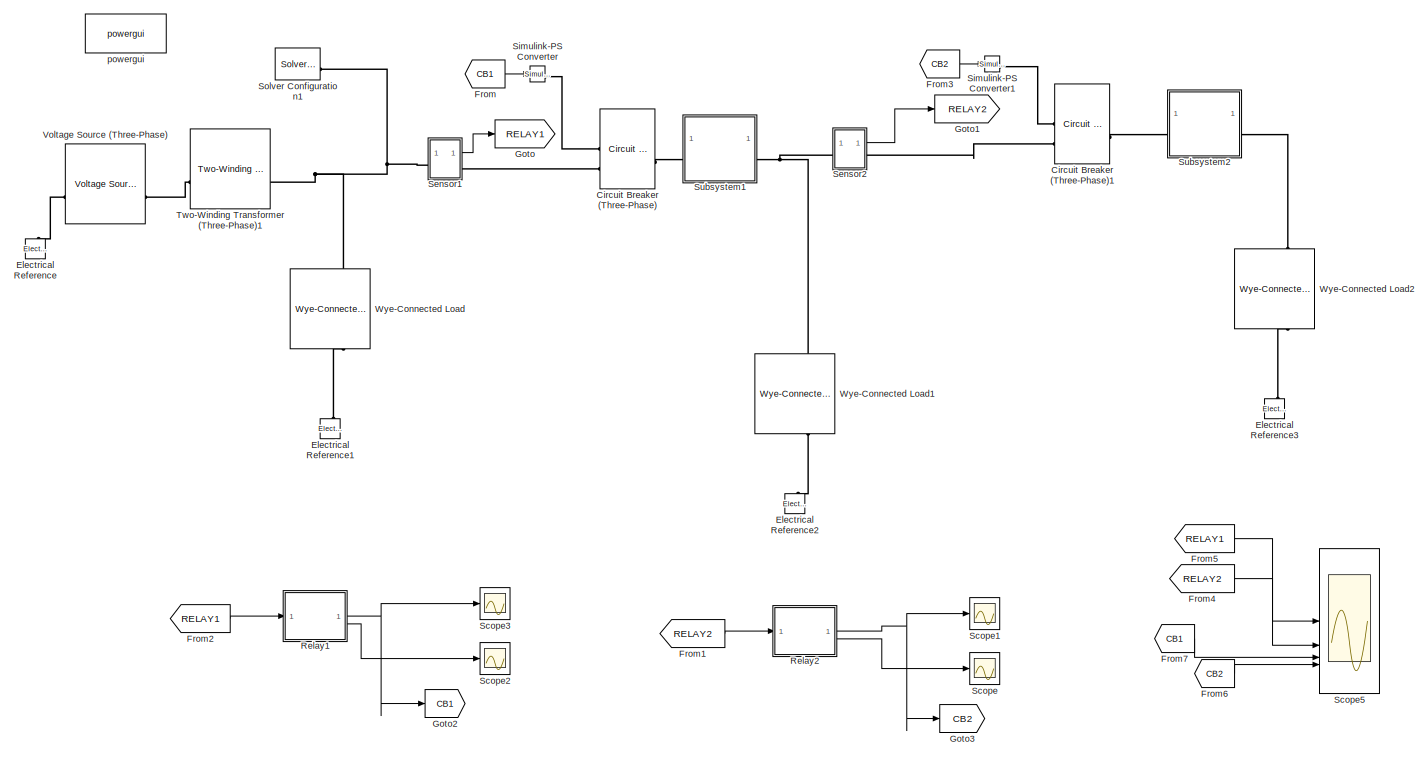
[diagram: root canvas - part 1/3, center side, full height]
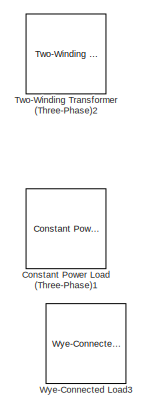
[diagram: root canvas - part 2/3, middle left region]
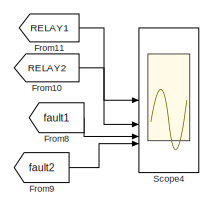
[diagram: root canvas - part 3/3, bottom right region]
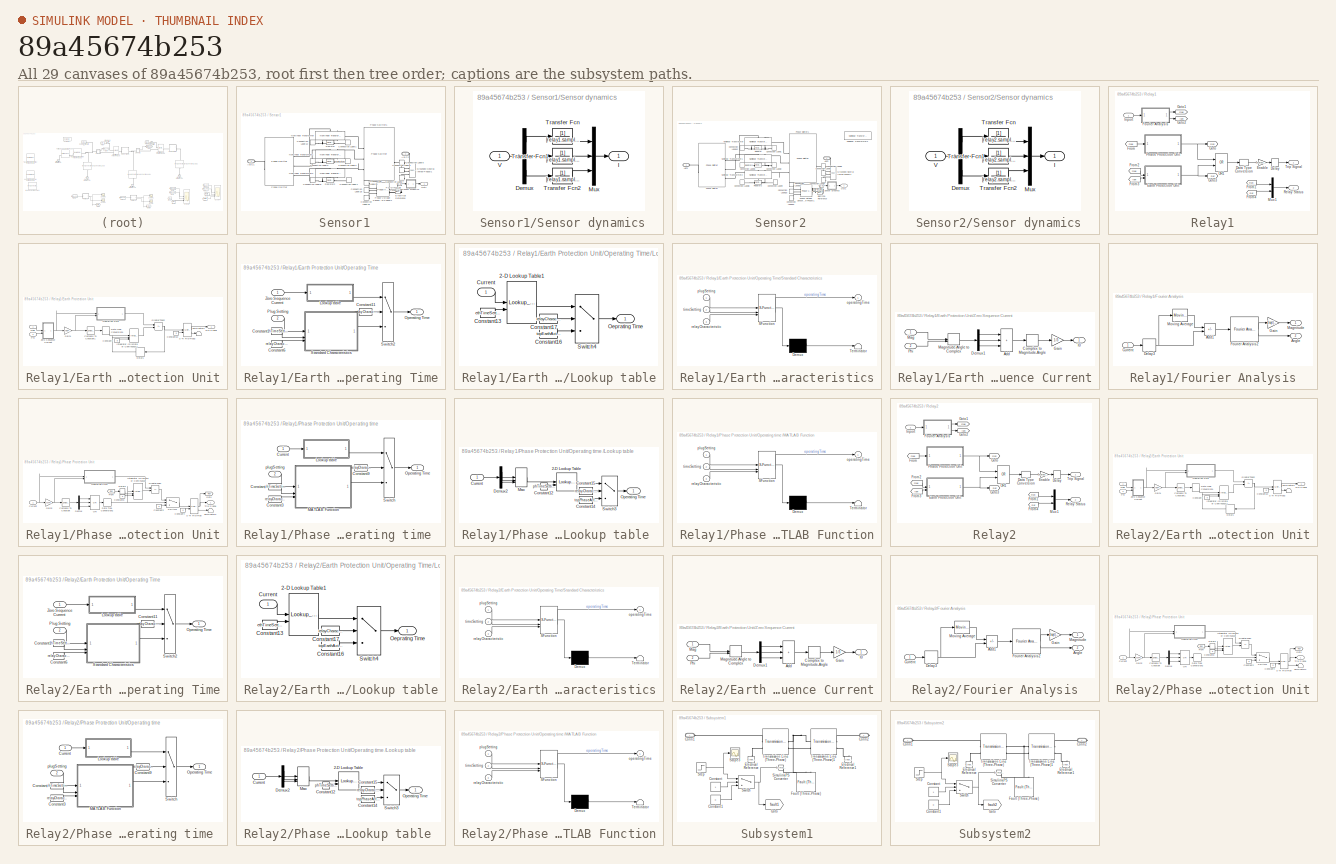
[diagram: thumbnail index - all 29 canvases of the model, root first then tree order]
MODEL slx_89a45674b253
KIND model
CONFIG AbsTol = auto
CONFIG EnableMultiTasking = off
CONFIG FixedStep = auto
CONFIG MaxStep = auto
CONFIG MinStep = auto
CONFIG RelTol = 1e-3
CONFIG SampleTimeConstraint = Unconstrained
CONFIG SolverName = VariableStepAuto
CONFIG StartTime = 0.0
CONFIG StopTime = 1
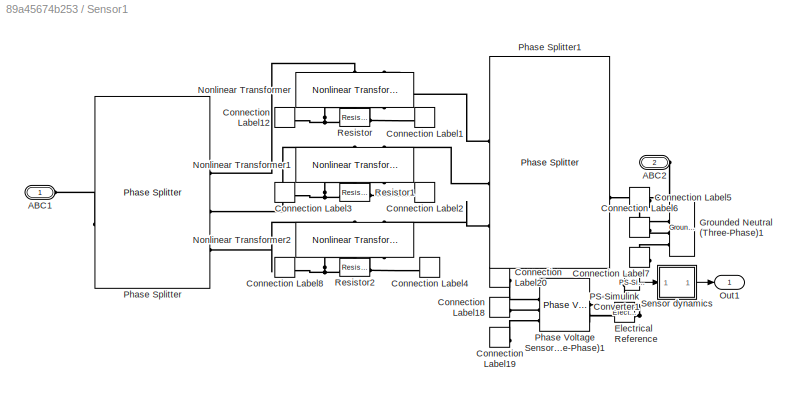
BLOCK [SubSystem]  Sensor1
BLOCK [PMIOPort]  Sensor1/ABC1
  NameLocation = top
  Side = Left
BLOCK [PMIOPort]  Sensor1/ABC2
  NameLocation = top
  Port = 2
  Side = Right
BLOCK [ConnectionLabel]  Sensor1/Connection Label1
  Label = Ian
BLOCK [ConnectionLabel]  Sensor1/Connection Label12
  Label = Iap
  NameLocation = top
BLOCK [ConnectionLabel]  Sensor1/Connection Label18
  Label = Ibp
  NameLocation = top
BLOCK [ConnectionLabel]  Sensor1/Connection Label19
  Label = Icp
  NameLocation = top
BLOCK [ConnectionLabel]  Sensor1/Connection Label2
  Label = Ibn
BLOCK [ConnectionLabel]  Sensor1/Connection Label20
  Label = Iap
  NameLocation = top
BLOCK [ConnectionLabel]  Sensor1/Connection Label3
  Label = Ibp
  NameLocation = top
BLOCK [ConnectionLabel]  Sensor1/Connection Label4
  Label = Ibn
BLOCK [ConnectionLabel]  Sensor1/Connection Label5
  Label = Ian
  NameLocation = top
BLOCK [ConnectionLabel]  Sensor1/Connection Label6
  Label = Ibn
  NameLocation = top
BLOCK [ConnectionLabel]  Sensor1/Connection Label7
  Label = Icn
  NameLocation = top
BLOCK [ConnectionLabel]  Sensor1/Connection Label8
  Label = Icp
  NameLocation = top
BLOCK [Reference]  Sensor1/Electrical Reference  REF=fl_lib/Electrical/Electrical Elements/Electrical Reference
  NameLocation = top
  SourceBlock = fl_lib/Electrical/Electrical Elements/Electrical Reference
  SourceType = Electrical Reference
BLOCK [Reference]  Sensor1/Grounded Neutral (Three-Phase)1  REF=ee_lib/Connectors &
References/Grounded Neutral
(Three-Phase)
  NameLocation = top
  SourceBlock = ee_lib/Connectors &\nReferences/Grounded Neutral\n(Three-Phase)
  SourceType = Grounded Neutral\n(Three-Phase)
BLOCK [Reference]  Sensor1/Nonlinear Transformer  REF=ee_lib/Passive/Transformers/Nonlinear
Transformer
  NameLocation = left
  SourceBlock = ee_lib/Passive/Transformers/Nonlinear\nTransformer
  SourceType = Nonlinear\nTransformer
BLOCK [Reference]  Sensor1/Nonlinear Transformer1  REF=ee_lib/Passive/Transformers/Nonlinear
Transformer
  NameLocation = left
  SourceBlock = ee_lib/Passive/Transformers/Nonlinear\nTransformer
  SourceType = Nonlinear\nTransformer
BLOCK [Reference]  Sensor1/Nonlinear Transformer2  REF=ee_lib/Passive/Transformers/Nonlinear
Transformer
  NameLocation = left
  SourceBlock = ee_lib/Passive/Transformers/Nonlinear\nTransformer
  SourceType = Nonlinear\nTransformer
BLOCK [Outport]  Sensor1/Out1
BLOCK [Reference]  Sensor1/PS-Simulink Converter1  REF=nesl_utility/PS-Simulink
Converter
  SourceBlock = nesl_utility/PS-Simulink\nConverter
  SourceType = PS-Simulink\nConverter
BLOCK [Reference]  Sensor1/Phase Splitter  REF=ee_lib/Connectors &
References/Phase Splitter
  SourceBlock = ee_lib/Connectors &\nReferences/Phase Splitter
  SourceType = Phase Splitter
BLOCK [Reference]  Sensor1/Phase Splitter1  REF=ee_lib/Connectors &
References/Phase Splitter
  SourceBlock = ee_lib/Connectors &\nReferences/Phase Splitter
  SourceType = Phase Splitter
BLOCK [Reference]  Sensor1/Phase Voltage Sensor (Three-Phase)1  REF=ee_lib/Sensors &
Transducers/Phase Voltage Sensor
(Three-Phase)
  NameLocation = right
  SourceBlock = ee_lib/Sensors &\nTransducers/Phase Voltage Sensor\n(Three-Phase)
  SourceType = Phase Voltage Sensor\n(Three-Phase)
BLOCK [Reference]  Sensor1/Resistor  REF=fl_lib/Electrical/Electrical Elements/Resistor
  SourceBlock = fl_lib/Electrical/Electrical Elements/Resistor
  SourceType = Resistor
BLOCK [Reference]  Sensor1/Resistor1  REF=fl_lib/Electrical/Electrical Elements/Resistor
  SourceBlock = fl_lib/Electrical/Electrical Elements/Resistor
  SourceType = Resistor
BLOCK [Reference]  Sensor1/Resistor2  REF=fl_lib/Electrical/Electrical Elements/Resistor
  SourceBlock = fl_lib/Electrical/Electrical Elements/Resistor
  SourceType = Resistor
BLOCK [SubSystem]  Sensor1/Sensor dynamics
BLOCK [Demux]  Sensor1/Sensor dynamics/Demux
  Outputs = 3
BLOCK [Outport]  Sensor1/Sensor dynamics/I
BLOCK [Mux]  Sensor1/Sensor dynamics/Mux
  DisplayOption = bar
  Inputs = 3
BLOCK [TransferFcn]  Sensor1/Sensor dynamics/Transfer Fcn
  Denominator = [relay1.sampleTime 1]
BLOCK [TransferFcn]  Sensor1/Sensor dynamics/Transfer Fcn1
  Denominator = [relay1.sampleTime 1]
BLOCK [TransferFcn]  Sensor1/Sensor dynamics/Transfer Fcn2
  Denominator = [relay1.sampleTime 1]
BLOCK [Inport]  Sensor1/Sensor dynamics/V
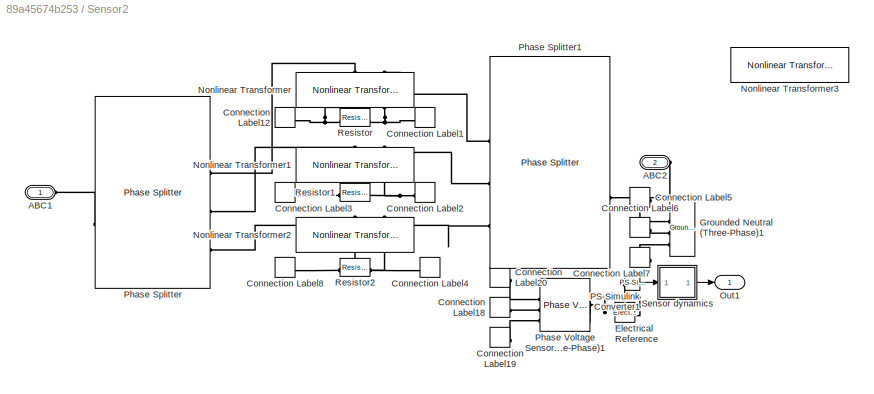
BLOCK [SubSystem]  Sensor2
BLOCK [PMIOPort]  Sensor2/ABC1
  NameLocation = top
  Side = Left
BLOCK [PMIOPort]  Sensor2/ABC2
  NameLocation = top
  Port = 2
  Side = Right
BLOCK [ConnectionLabel]  Sensor2/Connection Label1
  Label = Ian
BLOCK [ConnectionLabel]  Sensor2/Connection Label12
  Label = Iap
  NameLocation = top
BLOCK [ConnectionLabel]  Sensor2/Connection Label18
  Label = Ibp
  NameLocation = top
BLOCK [ConnectionLabel]  Sensor2/Connection Label19
  Label = Icp
  NameLocation = top
BLOCK [ConnectionLabel]  Sensor2/Connection Label2
  Label = Ibn
BLOCK [ConnectionLabel]  Sensor2/Connection Label20
  Label = Iap
  NameLocation = top
BLOCK [ConnectionLabel]  Sensor2/Connection Label3
  Label = Ibp
  NameLocation = top
BLOCK [ConnectionLabel]  Sensor2/Connection Label4
  Label = Ibn
BLOCK [ConnectionLabel]  Sensor2/Connection Label5
  Label = Ian
  NameLocation = top
BLOCK [ConnectionLabel]  Sensor2/Connection Label6
  Label = Ibn
  NameLocation = top
BLOCK [ConnectionLabel]  Sensor2/Connection Label7
  Label = Icn
  NameLocation = top
BLOCK [ConnectionLabel]  Sensor2/Connection Label8
  Label = Icp
  NameLocation = top
BLOCK [Reference]  Sensor2/Electrical Reference  REF=fl_lib/Electrical/Electrical Elements/Electrical Reference
  NameLocation = top
  SourceBlock = fl_lib/Electrical/Electrical Elements/Electrical Reference
  SourceType = Electrical Reference
BLOCK [Reference]  Sensor2/Grounded Neutral (Three-Phase)1  REF=ee_lib/Connectors &
References/Grounded Neutral
(Three-Phase)
  NameLocation = top
  SourceBlock = ee_lib/Connectors &\nReferences/Grounded Neutral\n(Three-Phase)
  SourceType = Grounded Neutral\n(Three-Phase)
BLOCK [Reference]  Sensor2/Nonlinear Transformer  REF=ee_lib/Passive/Transformers/Nonlinear
Transformer
  NameLocation = left
  SourceBlock = ee_lib/Passive/Transformers/Nonlinear\nTransformer
  SourceType = Nonlinear\nTransformer
BLOCK [Reference]  Sensor2/Nonlinear Transformer1  REF=ee_lib/Passive/Transformers/Nonlinear
Transformer
  NameLocation = left
  SourceBlock = ee_lib/Passive/Transformers/Nonlinear\nTransformer
  SourceType = Nonlinear\nTransformer
BLOCK [Reference]  Sensor2/Nonlinear Transformer2  REF=ee_lib/Passive/Transformers/Nonlinear
Transformer
  NameLocation = left
  SourceBlock = ee_lib/Passive/Transformers/Nonlinear\nTransformer
  SourceType = Nonlinear\nTransformer
BLOCK [Reference]  Sensor2/Nonlinear Transformer3  REF=ee_lib/Passive/Transformers/Nonlinear
Transformer
  NameLocation = left
  SourceBlock = ee_lib/Passive/Transformers/Nonlinear\nTransformer
  SourceType = Nonlinear\nTransformer
BLOCK [Outport]  Sensor2/Out1
BLOCK [Reference]  Sensor2/PS-Simulink Converter1  REF=nesl_utility/PS-Simulink
Converter
  SourceBlock = nesl_utility/PS-Simulink\nConverter
  SourceType = PS-Simulink\nConverter
BLOCK [Reference]  Sensor2/Phase Splitter  REF=ee_lib/Connectors &
References/Phase Splitter
  SourceBlock = ee_lib/Connectors &\nReferences/Phase Splitter
  SourceType = Phase Splitter
BLOCK [Reference]  Sensor2/Phase Splitter1  REF=ee_lib/Connectors &
References/Phase Splitter
  SourceBlock = ee_lib/Connectors &\nReferences/Phase Splitter
  SourceType = Phase Splitter
BLOCK [Reference]  Sensor2/Phase Voltage Sensor (Three-Phase)1  REF=ee_lib/Sensors &
Transducers/Phase Voltage Sensor
(Three-Phase)
  NameLocation = right
  SourceBlock = ee_lib/Sensors &\nTransducers/Phase Voltage Sensor\n(Three-Phase)
  SourceType = Phase Voltage Sensor\n(Three-Phase)
BLOCK [Reference]  Sensor2/Resistor  REF=fl_lib/Electrical/Electrical Elements/Resistor
  SourceBlock = fl_lib/Electrical/Electrical Elements/Resistor
  SourceType = Resistor
BLOCK [Reference]  Sensor2/Resistor1  REF=fl_lib/Electrical/Electrical Elements/Resistor
  SourceBlock = fl_lib/Electrical/Electrical Elements/Resistor
  SourceType = Resistor
BLOCK [Reference]  Sensor2/Resistor2  REF=fl_lib/Electrical/Electrical Elements/Resistor
  SourceBlock = fl_lib/Electrical/Electrical Elements/Resistor
  SourceType = Resistor
BLOCK [SubSystem]  Sensor2/Sensor dynamics
BLOCK [Demux]  Sensor2/Sensor dynamics/Demux
  Outputs = 3
BLOCK [Outport]  Sensor2/Sensor dynamics/I
BLOCK [Mux]  Sensor2/Sensor dynamics/Mux
  DisplayOption = bar
  Inputs = 3
BLOCK [TransferFcn]  Sensor2/Sensor dynamics/Transfer Fcn
  Denominator = [relay2.sampleTime 1]
BLOCK [TransferFcn]  Sensor2/Sensor dynamics/Transfer Fcn1
  Denominator = [relay2.sampleTime 1]
BLOCK [TransferFcn]  Sensor2/Sensor dynamics/Transfer Fcn2
  Denominator = [relay2.sampleTime 1]
BLOCK [Inport]  Sensor2/Sensor dynamics/V
BLOCK [Reference] Circuit Breaker (Three-Phase)  REF=ee_lib/Switches & Breakers/Circuit Breaker
(Three-Phase)
  SourceBlock = ee_lib/Switches & Breakers/Circuit Breaker\n(Three-Phase)
  SourceType = Circuit Breaker\n(Three-Phase)
BLOCK [Reference] Circuit Breaker (Three-Phase)1  REF=ee_lib/Switches & Breakers/Circuit Breaker
(Three-Phase)
  SourceBlock = ee_lib/Switches & Breakers/Circuit Breaker\n(Three-Phase)
  SourceType = Circuit Breaker\n(Three-Phase)
BLOCK [Reference] Constant Power Load (Three-Phase)1  REF=ee_lib/Passive/Constant Power Load
(Three-Phase)
  SourceBlock = ee_lib/Passive/Constant Power Load\n(Three-Phase)
  SourceType = Constant Power Load\n(Three-Phase)
BLOCK [Reference] Electrical Reference  REF=fl_lib/Electrical/Electrical Elements/Electrical Reference
  NameLocation = right
  SourceBlock = fl_lib/Electrical/Electrical Elements/Electrical Reference
  SourceType = Electrical Reference
BLOCK [Reference] Electrical Reference1  REF=fl_lib/Electrical/Electrical Elements/Electrical Reference
  NameLocation = right
  SourceBlock = fl_lib/Electrical/Electrical Elements/Electrical Reference
  SourceType = Electrical Reference
BLOCK [Reference] Electrical Reference2  REF=fl_lib/Electrical/Electrical Elements/Electrical Reference
  NameLocation = right
  SourceBlock = fl_lib/Electrical/Electrical Elements/Electrical Reference
  SourceType = Electrical Reference
BLOCK [Reference] Electrical Reference3  REF=fl_lib/Electrical/Electrical Elements/Electrical Reference
  NameLocation = right
  SourceBlock = fl_lib/Electrical/Electrical Elements/Electrical Reference
  SourceType = Electrical Reference
BLOCK [From] From
  GotoTag = CB1
BLOCK [From] From1
  GotoTag = RELAY2
BLOCK [From] From10
  GotoTag = RELAY2
BLOCK [From] From11
  GotoTag = RELAY1
BLOCK [From] From2
  GotoTag = RELAY1
BLOCK [From] From3
  GotoTag = CB2
BLOCK [From] From4
  GotoTag = RELAY2
BLOCK [From] From5
  GotoTag = RELAY1
BLOCK [From] From6
  GotoTag = CB2
BLOCK [From] From7
  GotoTag = CB1
BLOCK [From] From8
  GotoTag = fault1
  TagVisibility = global
BLOCK [From] From9
  GotoTag = fault2
  TagVisibility = global
BLOCK [Goto] Goto
  GotoTag = RELAY1
BLOCK [Goto] Goto1
  GotoTag = RELAY2
BLOCK [Goto] Goto2
  GotoTag = CB1
BLOCK [Goto] Goto3
  GotoTag = CB2
BLOCK [SubSystem] Relay1
  SystemSampleTime = relay1.sampleTime
  TreatAsAtomicUnit = on
BLOCK [DataTypeConversion] Relay1/Data Type Conversion
  OutDataTypeStr = double
  RndMeth = Floor
  SaturateOnIntegerOverflow = off
BLOCK [Delay] Relay1/Delay
  DelayLength = 1
  InputPortMap = u0
BLOCK [SubSystem] Relay1/Earth Protection Unit
BLOCK [Reference] Relay1/Earth Protection Unit/Compare To Constant1  REF=simulink/Logic and Bit
Operations/Compare
To Constant
  SourceBlock = simulink/Logic and Bit\nOperations/Compare\nTo Constant
  SourceType = Compare To Constant
BLOCK [Constant] Relay1/Earth Protection Unit/Constant10
  OutDataTypeStr = boolean
  Value = 0
BLOCK [Constant] Relay1/Earth Protection Unit/Constant7
  OutDataTypeStr = double
  Value = 0
BLOCK [DataTypeConversion] Relay1/Earth Protection Unit/Data Type Conversion1
  NameLocation = right
  OutDataTypeStr = double
  RndMeth = Floor
  SaturateOnIntegerOverflow = off
BLOCK [Delay] Relay1/Earth Protection Unit/Delay1
  DelayLength = 1
  InputPortMap = u0
  NameLocation = top
BLOCK [Gain] Relay1/Earth Protection Unit/Gain1
  Gain = 1/(ethPickUp)
BLOCK [RelationalOperator] Relay1/Earth Protection Unit/GreaterThan2
  InputSameDT = off
  Operator = <=
  OutDataTypeStr = boolean
  RndMeth = Simplest
BLOCK [Reference] Relay1/Earth Protection Unit/Integrator (Discrete or Continuous)1  REF=eeGeneralControl/Integrator
(Discrete or Continuous)
  SourceBlock = eeGeneralControl/Integrator\n(Discrete or Continuous)
  SourceType = Integrator (Discrete or Continuous)
BLOCK [Inport] Relay1/Earth Protection Unit/Mag
BLOCK [SubSystem] Relay1/Earth Protection Unit/Operating Time
BLOCK [Constant] Relay1/Earth Protection Unit/Operating Time/Constant1
  Value = ethTimeSetting
BLOCK [Constant] Relay1/Earth Protection Unit/Operating Time/Constant11
  Value = relayCharacteristicEarth
BLOCK [Constant] Relay1/Earth Protection Unit/Operating Time/Constant6
  Value = relayCharacteristicEarth
BLOCK [SubSystem] Relay1/Earth Protection Unit/Operating Time/Lookup table
BLOCK [Lookup_n-D] Relay1/Earth Protection Unit/Operating Time/Lookup table/2-D Lookup Table1
  BreakpointsForDimension1 = currentEarth
  BreakpointsForDimension2 = tmsEarth
  ExtrapMethod = Cubic spline
  InputPortMap = u0,u1
  InternalRulePriority = Speed
  InterpMethod = Cubic spline
  RndMeth = Simplest
  Table = topEarth
BLOCK [Constant] Relay1/Earth Protection Unit/Operating Time/Lookup table/Constant13
  Value = ethTimeSetting
BLOCK [Constant] Relay1/Earth Protection Unit/Operating Time/Lookup table/Constant16
  Value = topEarthActual
BLOCK [Constant] Relay1/Earth Protection Unit/Operating Time/Lookup table/Constant17
  Value = relayCharacteristicEarth
BLOCK [Inport] Relay1/Earth Protection Unit/Operating Time/Lookup table/Current
BLOCK [Outport] Relay1/Earth Protection Unit/Operating Time/Lookup table/Oeprating Time
BLOCK [Switch] Relay1/Earth Protection Unit/Operating Time/Lookup table/Switch4
  InputSameDT = off
  SaturateOnIntegerOverflow = off
  Threshold = 8
BLOCK [Outport] Relay1/Earth Protection Unit/Operating Time/Operating Time
BLOCK [Inport] Relay1/Earth Protection Unit/Operating Time/Plug Setting
  Port = 2
BLOCK [SubSystem] Relay1/Earth Protection Unit/Operating Time/Standard Characteristics
  ErrorFcn = Stateflow.Translate.translate
  PermitHierarchicalResolution = ExplicitOnly
  SFBlockType = MATLAB Function
  TreatAsAtomicUnit = on
BLOCK [Demux] Relay1/Earth Protection Unit/Operating Time/Standard Characteristics/ Demux 
  Outputs = 1
BLOCK [S-Function] Relay1/Earth Protection Unit/Operating Time/Standard Characteristics/ SFunction 
  EnableBusSupport = on
  FunctionName = sf_sfun
  PortCounts = [3 2]
  SFcnIsStateOwnerBlock = off
  SFunctionDeploymentMode = off
  Tag = Stateflow S-Function 3
BLOCK [Terminator] Relay1/Earth Protection Unit/Operating Time/Standard Characteristics/ Terminator 
BLOCK [Outport] Relay1/Earth Protection Unit/Operating Time/Standard Characteristics/operatingTime
BLOCK [Inport] Relay1/Earth Protection Unit/Operating Time/Standard Characteristics/plugSetting
BLOCK [Inport] Relay1/Earth Protection Unit/Operating Time/Standard Characteristics/relayCharacteristic
  Port = 3
BLOCK [Inport] Relay1/Earth Protection Unit/Operating Time/Standard Characteristics/timeSetting
  Port = 2
BLOCK [Switch] Relay1/Earth Protection Unit/Operating Time/Switch2
  InputSameDT = off
  SaturateOnIntegerOverflow = off
  Threshold = 7
BLOCK [Inport] Relay1/Earth Protection Unit/Operating Time/Zero Sequence Current
BLOCK [Inport] Relay1/Earth Protection Unit/Phi
  Port = 2
BLOCK [Reference] Relay1/Earth Protection Unit/S-R Flip-Flop2  REF=simulink_extras/Flip Flops/S-R
Flip-Flop
  SourceBlock = simulink_extras/Flip Flops/S-R\nFlip-Flop
  SourceType = SRFlipFlop
BLOCK [Terminator] Relay1/Earth Protection Unit/Terminator3
BLOCK [Outport] Relay1/Earth Protection Unit/Trip Signal
BLOCK [SubSystem] Relay1/Earth Protection Unit/Zero Sequence Current
BLOCK [Sum] Relay1/Earth Protection Unit/Zero Sequence Current/Add
  IconShape = rectangular
  Inputs = +++
BLOCK [ComplexToMagnitudeAngle] Relay1/Earth Protection Unit/Zero Sequence Current/Complex to Magnitude-Angle
  Output = Magnitude
BLOCK [Demux] Relay1/Earth Protection Unit/Zero Sequence Current/Demux1
  Outputs = 3
BLOCK [Gain] Relay1/Earth Protection Unit/Zero Sequence Current/Gain
  Gain = 1/3
BLOCK [Outport] Relay1/Earth Protection Unit/Zero Sequence Current/I0
BLOCK [Inport] Relay1/Earth Protection Unit/Zero Sequence Current/Mag
BLOCK [MagnitudeAngleToComplex] Relay1/Earth Protection Unit/Zero Sequence Current/Magnitude-Angle to Complex
BLOCK [Inport] Relay1/Earth Protection Unit/Zero Sequence Current/Phi
  Port = 2
BLOCK [Gain] Relay1/Enable
  Gain = protectionEnable
BLOCK [SubSystem] Relay1/Fourier Analysis
BLOCK [Sum] Relay1/Fourier Analysis/Add1
  IconShape = rectangular
  Inputs = -+
BLOCK [Outport] Relay1/Fourier Analysis/Angle
  Port = 2
BLOCK [Inport] Relay1/Fourier Analysis/Current
BLOCK [Delay] Relay1/Fourier Analysis/Delay3
  DelayLength = 1
  InputPortMap = u0
BLOCK [Reference] Relay1/Fourier Analysis/Fourier Analysis2  REF=eeGeneralControl/Fourier Analysis
  SourceBlock = eeGeneralControl/Fourier Analysis
  SourceType = Fourier Analysis
BLOCK [Gain] Relay1/Fourier Analysis/Gain
  Gain = 1/sqrt(2)
BLOCK [Outport] Relay1/Fourier Analysis/Magnitude
BLOCK [Reference] Relay1/Fourier Analysis/Moving Average  REF=eeGeneralControl/Moving Average
  SourceBlock = eeGeneralControl/Moving Average
  SourceType = Moving Average
BLOCK [From] Relay1/From
  GotoTag = mag
BLOCK [From] Relay1/From1
  GotoTag = Rph
BLOCK [From] Relay1/From2
  GotoTag = mag
BLOCK [From] Relay1/From3
  GotoTag = iphi
BLOCK [From] Relay1/From4
  GotoTag = Rer
BLOCK [Goto] Relay1/Goto
  GotoTag = Rph
BLOCK [Goto] Relay1/Goto1
  GotoTag = mag
BLOCK [Goto] Relay1/Goto2
  GotoTag = iphi
BLOCK [Goto] Relay1/Goto3
  GotoTag = Rer
BLOCK [Inport] Relay1/Inport
BLOCK [Mux] Relay1/Mux1
  DisplayOption = bar
  Inputs = 2
BLOCK [Logic] Relay1/OR1
  AllPortsSameDT = off
  IconShape = distinctive
  Operator = OR
  OutDataTypeStr = boolean
BLOCK [SubSystem] Relay1/Phase Protection Unit
BLOCK [Reference] Relay1/Phase Protection Unit/Compare To Constant  REF=simulink/Logic and Bit
Operations/Compare
To Constant
  SourceBlock = simulink/Logic and Bit\nOperations/Compare\nTo Constant
  SourceType = Compare To Constant
BLOCK [Constant] Relay1/Phase Protection Unit/Constant2
  OutDataTypeStr = boolean
  Value = 0
BLOCK [Constant] Relay1/Phase Protection Unit/Constant4
  OutDataTypeStr = boolean
  Value = 0
BLOCK [Constant] Relay1/Phase Protection Unit/Constant8
  OutDataTypeStr = double
  Value = 0
BLOCK [Inport] Relay1/Phase Protection Unit/Current
BLOCK [DataTypeConversion] Relay1/Phase Protection Unit/Data Type Conversion2
  NameLocation = right
  OutDataTypeStr = double
  RndMeth = Floor
  SaturateOnIntegerOverflow = off
BLOCK [Delay] Relay1/Phase Protection Unit/Delay2
  DelayLength = 1
  InputPortMap = u0
BLOCK [Demux] Relay1/Phase Protection Unit/Demux
  Outputs = 3
BLOCK [From] Relay1/Phase Protection Unit/From
  GotoTag = Rph
BLOCK [Gain] Relay1/Phase Protection Unit/Gain2
  Gain = 1/(phPickUp)
BLOCK [Goto] Relay1/Phase Protection Unit/Goto
  GotoTag = Rph
BLOCK [RelationalOperator] Relay1/Phase Protection Unit/GreaterThan
  InputSameDT = off
  Operator = <=
  OutDataTypeStr = boolean
  RndMeth = Simplest
BLOCK [Reference] Relay1/Phase Protection Unit/Integrator (Discrete or Continuous)  REF=eeGeneralControl/Integrator
(Discrete or Continuous)
  SourceBlock = eeGeneralControl/Integrator\n(Discrete or Continuous)
  SourceType = Integrator (Discrete or Continuous)
BLOCK [Logic] Relay1/Phase Protection Unit/OR
  AllPortsSameDT = off
  IconShape = distinctive
  Inputs = 3
  Operator = OR
  OutDataTypeStr = boolean
BLOCK [SubSystem] Relay1/Phase Protection Unit/Operating time 
BLOCK [Constant] Relay1/Phase Protection Unit/Operating time /Constant
  Value = phTimeSetting
  VectorParams1D = off
BLOCK [Constant] Relay1/Phase Protection Unit/Operating time /Constant3
  Value = relayCharacteristicPhase
BLOCK [Constant] Relay1/Phase Protection Unit/Operating time /Constant9
  Value = relayCharacteristicPhase
BLOCK [Inport] Relay1/Phase Protection Unit/Operating time /Current
BLOCK [SubSystem] Relay1/Phase Protection Unit/Operating time /Lookup table 
BLOCK [Lookup_n-D] Relay1/Phase Protection Unit/Operating time /Lookup table /2-D Lookup Table
  BreakpointsForDimension1 = currentPhase
  BreakpointsForDimension2 = tmsPhase
  ExtrapMethod = Cubic spline
  InputPortMap = u0,u1
  InternalRulePriority = Speed
  InterpMethod = Cubic spline
  RndMeth = Simplest
  Table = topPhase
BLOCK [Constant] Relay1/Phase Protection Unit/Operating time /Lookup table /Constant12
  Value = phTimeSetting
  VectorParams1D = off
BLOCK [Constant] Relay1/Phase Protection Unit/Operating time /Lookup table /Constant14
  Value = topPhaseActual
BLOCK [Constant] Relay1/Phase Protection Unit/Operating time /Lookup table /Constant15
  Value = relayCharacteristicPhase
BLOCK [Inport] Relay1/Phase Protection Unit/Operating time /Lookup table /Current
BLOCK [Demux] Relay1/Phase Protection Unit/Operating time /Lookup table /Demux2
  Outputs = 3
BLOCK [MinMax] Relay1/Phase Protection Unit/Operating time /Lookup table /Max
  Function = max
  Inputs = 3
BLOCK [Outport] Relay1/Phase Protection Unit/Operating time /Lookup table /Operating Time
BLOCK [Switch] Relay1/Phase Protection Unit/Operating time /Lookup table /Switch3
  InputSameDT = off
  SaturateOnIntegerOverflow = off
  Threshold = 8
BLOCK [SubSystem] Relay1/Phase Protection Unit/Operating time /MATLAB Function
  ErrorFcn = Stateflow.Translate.translate
  PermitHierarchicalResolution = ExplicitOnly
  SFBlockType = MATLAB Function
  TreatAsAtomicUnit = on
BLOCK [Demux] Relay1/Phase Protection Unit/Operating time /MATLAB Function/ Demux 
  Outputs = 1
BLOCK [S-Function] Relay1/Phase Protection Unit/Operating time /MATLAB Function/ SFunction 
  EnableBusSupport = on
  FunctionName = sf_sfun
  PortCounts = [3 2]
  SFcnIsStateOwnerBlock = off
  SFunctionDeploymentMode = off
  Tag = Stateflow S-Function 4
BLOCK [Terminator] Relay1/Phase Protection Unit/Operating time /MATLAB Function/ Terminator 
BLOCK [Outport] Relay1/Phase Protection Unit/Operating time /MATLAB Function/operatingTime
BLOCK [Inport] Relay1/Phase Protection Unit/Operating time /MATLAB Function/plugSetting
BLOCK [Inport] Relay1/Phase Protection Unit/Operating time /MATLAB Function/relayCharacteristic
  Port = 3
BLOCK [Inport] Relay1/Phase Protection Unit/Operating time /MATLAB Function/timeSetting
  Port = 2
BLOCK [Outport] Relay1/Phase Protection Unit/Operating time /Operating Time
BLOCK [Switch] Relay1/Phase Protection Unit/Operating time /Switch
  InputSameDT = off
  SaturateOnIntegerOverflow = off
  Threshold = 7
BLOCK [Inport] Relay1/Phase Protection Unit/Operating time /plugSetting
  Port = 2
BLOCK [Reference] Relay1/Phase Protection Unit/S-R Flip-Flop  REF=simulink_extras/Flip Flops/S-R
Flip-Flop
  SourceBlock = simulink_extras/Flip Flops/S-R\nFlip-Flop
  SourceType = SRFlipFlop
BLOCK [Switch] Relay1/Phase Protection Unit/Switch1
  Criteria = u2 > Threshold
  InputSameDT = off
  OutDataTypeStr = boolean
  SaturateOnIntegerOverflow = off
BLOCK [Terminator] Relay1/Phase Protection Unit/Terminator2
BLOCK [Outport] Relay1/Phase Protection Unit/Trip Signal
BLOCK [Outport] Relay1/Relay Status
  Port = 2
BLOCK [Outport] Relay1/Trip Signal
BLOCK [SubSystem] Relay2
  SystemSampleTime = relay1.sampleTime
  TreatAsAtomicUnit = on
BLOCK [DataTypeConversion] Relay2/Data Type Conversion
  OutDataTypeStr = double
  RndMeth = Floor
  SaturateOnIntegerOverflow = off
BLOCK [Delay] Relay2/Delay
  DelayLength = 1
  InputPortMap = u0
BLOCK [SubSystem] Relay2/Earth Protection Unit
BLOCK [Reference] Relay2/Earth Protection Unit/Compare To Constant1  REF=simulink/Logic and Bit
Operations/Compare
To Constant
  SourceBlock = simulink/Logic and Bit\nOperations/Compare\nTo Constant
  SourceType = Compare To Constant
BLOCK [Constant] Relay2/Earth Protection Unit/Constant10
  OutDataTypeStr = boolean
  Value = 0
BLOCK [Constant] Relay2/Earth Protection Unit/Constant7
  OutDataTypeStr = double
  Value = 0
BLOCK [DataTypeConversion] Relay2/Earth Protection Unit/Data Type Conversion1
  NameLocation = right
  OutDataTypeStr = double
  RndMeth = Floor
  SaturateOnIntegerOverflow = off
BLOCK [Delay] Relay2/Earth Protection Unit/Delay1
  DelayLength = 1
  InputPortMap = u0
  NameLocation = top
BLOCK [Gain] Relay2/Earth Protection Unit/Gain1
  Gain = 1/(ethPickUp)
BLOCK [RelationalOperator] Relay2/Earth Protection Unit/GreaterThan2
  InputSameDT = off
  Operator = <=
  OutDataTypeStr = boolean
  RndMeth = Simplest
BLOCK [Reference] Relay2/Earth Protection Unit/Integrator (Discrete or Continuous)1  REF=eeGeneralControl/Integrator
(Discrete or Continuous)
  SourceBlock = eeGeneralControl/Integrator\n(Discrete or Continuous)
  SourceType = Integrator (Discrete or Continuous)
BLOCK [Inport] Relay2/Earth Protection Unit/Mag
BLOCK [SubSystem] Relay2/Earth Protection Unit/Operating Time
BLOCK [Constant] Relay2/Earth Protection Unit/Operating Time/Constant1
  Value = ethTimeSetting
BLOCK [Constant] Relay2/Earth Protection Unit/Operating Time/Constant11
  Value = relayCharacteristicEarth
BLOCK [Constant] Relay2/Earth Protection Unit/Operating Time/Constant6
  Value = relayCharacteristicEarth
BLOCK [SubSystem] Relay2/Earth Protection Unit/Operating Time/Lookup table
BLOCK [Lookup_n-D] Relay2/Earth Protection Unit/Operating Time/Lookup table/2-D Lookup Table1
  BreakpointsForDimension1 = currentEarth
  BreakpointsForDimension2 = tmsEarth
  ExtrapMethod = Cubic spline
  InputPortMap = u0,u1
  InternalRulePriority = Speed
  InterpMethod = Cubic spline
  RndMeth = Simplest
  Table = topEarth
BLOCK [Constant] Relay2/Earth Protection Unit/Operating Time/Lookup table/Constant13
  Value = ethTimeSetting
BLOCK [Constant] Relay2/Earth Protection Unit/Operating Time/Lookup table/Constant16
  Value = topEarthActual
BLOCK [Constant] Relay2/Earth Protection Unit/Operating Time/Lookup table/Constant17
  Value = relayCharacteristicEarth
BLOCK [Inport] Relay2/Earth Protection Unit/Operating Time/Lookup table/Current
BLOCK [Outport] Relay2/Earth Protection Unit/Operating Time/Lookup table/Oeprating Time
BLOCK [Switch] Relay2/Earth Protection Unit/Operating Time/Lookup table/Switch4
  InputSameDT = off
  SaturateOnIntegerOverflow = off
  Threshold = 8
BLOCK [Outport] Relay2/Earth Protection Unit/Operating Time/Operating Time
BLOCK [Inport] Relay2/Earth Protection Unit/Operating Time/Plug Setting
  Port = 2
BLOCK [SubSystem] Relay2/Earth Protection Unit/Operating Time/Standard Characteristics
  ErrorFcn = Stateflow.Translate.translate
  PermitHierarchicalResolution = ExplicitOnly
  SFBlockType = MATLAB Function
  TreatAsAtomicUnit = on
BLOCK [Demux] Relay2/Earth Protection Unit/Operating Time/Standard Characteristics/ Demux 
  Outputs = 1
BLOCK [S-Function] Relay2/Earth Protection Unit/Operating Time/Standard Characteristics/ SFunction 
  EnableBusSupport = on
  FunctionName = sf_sfun
  PortCounts = [3 2]
  SFcnIsStateOwnerBlock = off
  SFunctionDeploymentMode = off
  Tag = Stateflow S-Function 1
BLOCK [Terminator] Relay2/Earth Protection Unit/Operating Time/Standard Characteristics/ Terminator 
BLOCK [Outport] Relay2/Earth Protection Unit/Operating Time/Standard Characteristics/operatingTime
BLOCK [Inport] Relay2/Earth Protection Unit/Operating Time/Standard Characteristics/plugSetting
BLOCK [Inport] Relay2/Earth Protection Unit/Operating Time/Standard Characteristics/relayCharacteristic
  Port = 3
BLOCK [Inport] Relay2/Earth Protection Unit/Operating Time/Standard Characteristics/timeSetting
  Port = 2
BLOCK [Switch] Relay2/Earth Protection Unit/Operating Time/Switch2
  InputSameDT = off
  SaturateOnIntegerOverflow = off
  Threshold = 7
BLOCK [Inport] Relay2/Earth Protection Unit/Operating Time/Zero Sequence Current
BLOCK [Inport] Relay2/Earth Protection Unit/Phi
  Port = 2
BLOCK [Reference] Relay2/Earth Protection Unit/S-R Flip-Flop2  REF=simulink_extras/Flip Flops/S-R
Flip-Flop
  SourceBlock = simulink_extras/Flip Flops/S-R\nFlip-Flop
  SourceType = SRFlipFlop
BLOCK [Terminator] Relay2/Earth Protection Unit/Terminator3
BLOCK [Outport] Relay2/Earth Protection Unit/Trip Signal
BLOCK [SubSystem] Relay2/Earth Protection Unit/Zero Sequence Current
BLOCK [Sum] Relay2/Earth Protection Unit/Zero Sequence Current/Add
  IconShape = rectangular
  Inputs = +++
BLOCK [ComplexToMagnitudeAngle] Relay2/Earth Protection Unit/Zero Sequence Current/Complex to Magnitude-Angle
  Output = Magnitude
BLOCK [Demux] Relay2/Earth Protection Unit/Zero Sequence Current/Demux1
  Outputs = 3
BLOCK [Gain] Relay2/Earth Protection Unit/Zero Sequence Current/Gain
  Gain = 1/3
BLOCK [Outport] Relay2/Earth Protection Unit/Zero Sequence Current/I0
BLOCK [Inport] Relay2/Earth Protection Unit/Zero Sequence Current/Mag
BLOCK [MagnitudeAngleToComplex] Relay2/Earth Protection Unit/Zero Sequence Current/Magnitude-Angle to Complex
BLOCK [Inport] Relay2/Earth Protection Unit/Zero Sequence Current/Phi
  Port = 2
BLOCK [Gain] Relay2/Enable
  Gain = protectionEnable
BLOCK [SubSystem] Relay2/Fourier Analysis
BLOCK [Sum] Relay2/Fourier Analysis/Add1
  IconShape = rectangular
  Inputs = -+
BLOCK [Outport] Relay2/Fourier Analysis/Angle
  Port = 2
BLOCK [Inport] Relay2/Fourier Analysis/Current
BLOCK [Delay] Relay2/Fourier Analysis/Delay3
  DelayLength = 1
  InputPortMap = u0
BLOCK [Reference] Relay2/Fourier Analysis/Fourier Analysis2  REF=eeGeneralControl/Fourier Analysis
  SourceBlock = eeGeneralControl/Fourier Analysis
  SourceType = Fourier Analysis
BLOCK [Gain] Relay2/Fourier Analysis/Gain
  Gain = 1/sqrt(2)
BLOCK [Outport] Relay2/Fourier Analysis/Magnitude
BLOCK [Reference] Relay2/Fourier Analysis/Moving Average  REF=eeGeneralControl/Moving Average
  SourceBlock = eeGeneralControl/Moving Average
  SourceType = Moving Average
BLOCK [From] Relay2/From
  GotoTag = mag
BLOCK [From] Relay2/From1
  GotoTag = Rph
BLOCK [From] Relay2/From2
  GotoTag = mag
BLOCK [From] Relay2/From3
  GotoTag = iphi
BLOCK [From] Relay2/From4
  GotoTag = Rer
BLOCK [Goto] Relay2/Goto
  GotoTag = Rph
BLOCK [Goto] Relay2/Goto1
  GotoTag = mag
BLOCK [Goto] Relay2/Goto2
  GotoTag = iphi
BLOCK [Goto] Relay2/Goto3
  GotoTag = Rer
BLOCK [Inport] Relay2/Inport
BLOCK [Mux] Relay2/Mux1
  DisplayOption = bar
  Inputs = 2
BLOCK [Logic] Relay2/OR1
  AllPortsSameDT = off
  IconShape = distinctive
  Operator = OR
  OutDataTypeStr = boolean
BLOCK [SubSystem] Relay2/Phase Protection Unit
BLOCK [Reference] Relay2/Phase Protection Unit/Compare To Constant  REF=simulink/Logic and Bit
Operations/Compare
To Constant
  SourceBlock = simulink/Logic and Bit\nOperations/Compare\nTo Constant
  SourceType = Compare To Constant
BLOCK [Constant] Relay2/Phase Protection Unit/Constant2
  OutDataTypeStr = boolean
  Value = 0
BLOCK [Constant] Relay2/Phase Protection Unit/Constant4
  OutDataTypeStr = boolean
  Value = 0
BLOCK [Constant] Relay2/Phase Protection Unit/Constant8
  OutDataTypeStr = double
  Value = 0
BLOCK [Inport] Relay2/Phase Protection Unit/Current
BLOCK [DataTypeConversion] Relay2/Phase Protection Unit/Data Type Conversion2
  NameLocation = right
  OutDataTypeStr = double
  RndMeth = Floor
  SaturateOnIntegerOverflow = off
BLOCK [Delay] Relay2/Phase Protection Unit/Delay2
  DelayLength = 1
  InputPortMap = u0
BLOCK [Demux] Relay2/Phase Protection Unit/Demux
  Outputs = 3
BLOCK [From] Relay2/Phase Protection Unit/From
  GotoTag = Rph
BLOCK [Gain] Relay2/Phase Protection Unit/Gain2
  Gain = 1/(phPickUp)
BLOCK [Goto] Relay2/Phase Protection Unit/Goto
  GotoTag = Rph
BLOCK [RelationalOperator] Relay2/Phase Protection Unit/GreaterThan
  InputSameDT = off
  Operator = <=
  OutDataTypeStr = boolean
  RndMeth = Simplest
BLOCK [Reference] Relay2/Phase Protection Unit/Integrator (Discrete or Continuous)  REF=eeGeneralControl/Integrator
(Discrete or Continuous)
  SourceBlock = eeGeneralControl/Integrator\n(Discrete or Continuous)
  SourceType = Integrator (Discrete or Continuous)
BLOCK [Logic] Relay2/Phase Protection Unit/OR
  AllPortsSameDT = off
  IconShape = distinctive
  Inputs = 3
  Operator = OR
  OutDataTypeStr = boolean
BLOCK [SubSystem] Relay2/Phase Protection Unit/Operating time 
BLOCK [Constant] Relay2/Phase Protection Unit/Operating time /Constant
  Value = phTimeSetting
  VectorParams1D = off
BLOCK [Constant] Relay2/Phase Protection Unit/Operating time /Constant3
  Value = relayCharacteristicPhase
BLOCK [Constant] Relay2/Phase Protection Unit/Operating time /Constant9
  Value = relayCharacteristicPhase
BLOCK [Inport] Relay2/Phase Protection Unit/Operating time /Current
BLOCK [SubSystem] Relay2/Phase Protection Unit/Operating time /Lookup table 
BLOCK [Lookup_n-D] Relay2/Phase Protection Unit/Operating time /Lookup table /2-D Lookup Table
  BreakpointsForDimension1 = currentPhase
  BreakpointsForDimension2 = tmsPhase
  ExtrapMethod = Cubic spline
  InputPortMap = u0,u1
  InternalRulePriority = Speed
  InterpMethod = Cubic spline
  RndMeth = Simplest
  Table = topPhase
BLOCK [Constant] Relay2/Phase Protection Unit/Operating time /Lookup table /Constant12
  Value = phTimeSetting
  VectorParams1D = off
BLOCK [Constant] Relay2/Phase Protection Unit/Operating time /Lookup table /Constant14
  Value = topPhaseActual
BLOCK [Constant] Relay2/Phase Protection Unit/Operating time /Lookup table /Constant15
  Value = relayCharacteristicPhase
BLOCK [Inport] Relay2/Phase Protection Unit/Operating time /Lookup table /Current
BLOCK [Demux] Relay2/Phase Protection Unit/Operating time /Lookup table /Demux2
  Outputs = 3
BLOCK [MinMax] Relay2/Phase Protection Unit/Operating time /Lookup table /Max
  Function = max
  Inputs = 3
BLOCK [Outport] Relay2/Phase Protection Unit/Operating time /Lookup table /Operating Time
BLOCK [Switch] Relay2/Phase Protection Unit/Operating time /Lookup table /Switch3
  InputSameDT = off
  SaturateOnIntegerOverflow = off
  Threshold = 8
BLOCK [SubSystem] Relay2/Phase Protection Unit/Operating time /MATLAB Function
  ErrorFcn = Stateflow.Translate.translate
  PermitHierarchicalResolution = ExplicitOnly
  SFBlockType = MATLAB Function
  TreatAsAtomicUnit = on
BLOCK [Demux] Relay2/Phase Protection Unit/Operating time /MATLAB Function/ Demux 
  Outputs = 1
BLOCK [S-Function] Relay2/Phase Protection Unit/Operating time /MATLAB Function/ SFunction 
  EnableBusSupport = on
  FunctionName = sf_sfun
  PortCounts = [3 2]
  SFcnIsStateOwnerBlock = off
  SFunctionDeploymentMode = off
  Tag = Stateflow S-Function 2
BLOCK [Terminator] Relay2/Phase Protection Unit/Operating time /MATLAB Function/ Terminator 
BLOCK [Outport] Relay2/Phase Protection Unit/Operating time /MATLAB Function/operatingTime
BLOCK [Inport] Relay2/Phase Protection Unit/Operating time /MATLAB Function/plugSetting
BLOCK [Inport] Relay2/Phase Protection Unit/Operating time /MATLAB Function/relayCharacteristic
  Port = 3
BLOCK [Inport] Relay2/Phase Protection Unit/Operating time /MATLAB Function/timeSetting
  Port = 2
BLOCK [Outport] Relay2/Phase Protection Unit/Operating time /Operating Time
BLOCK [Switch] Relay2/Phase Protection Unit/Operating time /Switch
  InputSameDT = off
  SaturateOnIntegerOverflow = off
  Threshold = 7
BLOCK [Inport] Relay2/Phase Protection Unit/Operating time /plugSetting
  Port = 2
BLOCK [Reference] Relay2/Phase Protection Unit/S-R Flip-Flop  REF=simulink_extras/Flip Flops/S-R
Flip-Flop
  SourceBlock = simulink_extras/Flip Flops/S-R\nFlip-Flop
  SourceType = SRFlipFlop
BLOCK [Switch] Relay2/Phase Protection Unit/Switch1
  Criteria = u2 > Threshold
  InputSameDT = off
  OutDataTypeStr = boolean
  SaturateOnIntegerOverflow = off
BLOCK [Terminator] Relay2/Phase Protection Unit/Terminator2
BLOCK [Outport] Relay2/Phase Protection Unit/Trip Signal
BLOCK [Outport] Relay2/Relay Status
  Port = 2
BLOCK [Outport] Relay2/Trip Signal
BLOCK [Scope] Scope
  Floating = off
  NumInputPorts = 1
  ScopeSpecificationString = Simulink.scopes.TimeScopeBlockCfg('CurrentConfiguration', extmgr.ConfigurationSet(extmgr.Configuration('Core','General UI',true),extmgr.Configuration('Core','Source UI',true),extmgr.Configuration('Sources','WiredSimulink',true),extmgr.Configuration('Visuals','Time Domain',true,'SerializedDisplays',{struct('MinYLimReal','-0.125','MaxYLimReal','1.125','YLabelReal','','MinYLimMag','0.00000','MaxYLimM...<+1358ch>
BLOCK [Scope] Scope1
  Floating = off
  NumInputPorts = 1
  ScopeSpecificationString = Simulink.scopes.TimeScopeBlockCfg('CurrentConfiguration', extmgr.ConfigurationSet(extmgr.Configuration('Core','General UI',true),extmgr.Configuration('Core','Source UI',true),extmgr.Configuration('Sources','WiredSimulink',true,'DataLoggingVariableName','ScopeData1'),extmgr.Configuration('Visuals','Time Domain',true,'SerializedDisplays',{struct('MinYLimReal','-0.125','MaxYLimReal','1.125','YLabelRe...<+1382ch>
BLOCK [Scope] Scope2
  Floating = off
  NumInputPorts = 1
  ScopeSpecificationString = Simulink.scopes.TimeScopeBlockCfg('CurrentConfiguration', extmgr.ConfigurationSet(extmgr.Configuration('Core','General UI',true),extmgr.Configuration('Core','Source UI',true),extmgr.Configuration('Sources','WiredSimulink',true,'DataLoggingVariableName','ScopeData1'),extmgr.Configuration('Visuals','Time Domain',true,'SerializedDisplays',{struct('MinYLimReal','-1.00000','MaxYLimReal','1.00000','YLab...<+1409ch>
BLOCK [Scope] Scope3
  Floating = off
  NumInputPorts = 1
  ScopeSpecificationString = Simulink.scopes.TimeScopeBlockCfg('CurrentConfiguration', extmgr.ConfigurationSet(extmgr.Configuration('Core','General UI',true),extmgr.Configuration('Core','Source UI',true),extmgr.Configuration('Sources','WiredSimulink',true,'DataLoggingVariableName','ScopeData2'),extmgr.Configuration('Visuals','Time Domain',true,'SerializedDisplays',{struct('MinYLimReal','-1.00000','MaxYLimReal','1.00000','YLab...<+1394ch>
BLOCK [Scope] Scope4
  Floating = off
  NumInputPorts = 4
  ScopeSpecificationString = Simulink.scopes.TimeScopeBlockCfg('CurrentConfiguration', extmgr.ConfigurationSet(extmgr.Configuration('Core','General UI',true,'FigureColor',[1 1 1]),extmgr.Configuration('Core','Source UI',true),extmgr.Configuration('Sources','WiredSimulink',true,'DataLoggingVariableName','ScopeData2'),extmgr.Configuration('Visuals','Time Domain',true,'SerializedDisplays',{struct('MinYLimReal','-1.92377','MaxYLi...<+4433ch>
BLOCK [Scope] Scope5
  Floating = off
  NumInputPorts = 4
  ScopeSpecificationString = Simulink.scopes.TimeScopeBlockCfg('CurrentConfiguration', extmgr.ConfigurationSet(extmgr.Configuration('Core','General UI',true,'FigureColor',[1 1 1]),extmgr.Configuration('Core','Source UI',true),extmgr.Configuration('Sources','WiredSimulink',true,'DataLoggingVariableName','ScopeData1'),extmgr.Configuration('Visuals','Time Domain',true,'SerializedDisplays',{struct('MinYLimReal','-1.92377','MaxYLi...<+4436ch>
BLOCK [Reference] Simulink-PS Converter  REF=nesl_utility/Simulink-PS
Converter
  SourceBlock = nesl_utility/Simulink-PS\nConverter
  SourceType = Simulink-PS\nConverter
BLOCK [Reference] Simulink-PS Converter1  REF=nesl_utility/Simulink-PS
Converter
  SourceBlock = nesl_utility/Simulink-PS\nConverter
  SourceType = Simulink-PS\nConverter
BLOCK [Reference] Solver Configuration1  REF=nesl_utility/Solver
Configuration
  SourceBlock = nesl_utility/Solver\nConfiguration
  SourceType = Solver\nConfiguration
BLOCK [SubSystem] Subsystem1
BLOCK [PMIOPort] Subsystem1/Conn1
  Side = Left
BLOCK [PMIOPort] Subsystem1/Conn2
  Port = 2
  Side = Right
BLOCK [Constant] Subsystem1/Constant
BLOCK [Constant] Subsystem1/Constant1
  Value = 0
BLOCK [Reference] Subsystem1/Electrical Reference  REF=fl_lib/Electrical/Electrical Elements/Electrical Reference
  NameLocation = right
  SourceBlock = fl_lib/Electrical/Electrical Elements/Electrical Reference
  SourceType = Electrical Reference
BLOCK [Reference] Subsystem1/Electrical Reference1  REF=fl_lib/Electrical/Electrical Elements/Electrical Reference
  NameLocation = right
  SourceBlock = fl_lib/Electrical/Electrical Elements/Electrical Reference
  SourceType = Electrical Reference
BLOCK [Reference] Subsystem1/Fault (Three-Phase)  REF=ee_lib/Utilities/Fault (Three-Phase)
  NameLocation = right
  SourceBlock = ee_lib/Utilities/Fault (Three-Phase)
  SourceType = Fault (Three-Phase)
BLOCK [Goto] Subsystem1/Goto
  GotoTag = fault1
  TagVisibility = global
BLOCK [Scope] Subsystem1/Scope3
  Floating = off
  NumInputPorts = 1
  ScopeSpecificationString = Simulink.scopes.TimeScopeBlockCfg('CurrentConfiguration', extmgr.ConfigurationSet(extmgr.Configuration('Core','General UI',true),extmgr.Configuration('Core','Source UI',true),extmgr.Configuration('Sources','WiredSimulink',true,'DataLoggingVariableName','ScopeData5'),extmgr.Configuration('Visuals','Time Domain',true,'SerializedDisplays',{struct('MinYLimReal','-0.125','MaxYLimReal','1.125','YLabelRe...<+1378ch>
BLOCK [Reference] Subsystem1/Simulink-PS Converter  REF=nesl_utility/Simulink-PS
Converter
  SourceBlock = nesl_utility/Simulink-PS\nConverter
  SourceType = Simulink-PS\nConverter
BLOCK [Step] Subsystem1/Step
  After = 0
  SampleTime = 0
  Time = 0
BLOCK [Switch] Subsystem1/Switch
  Criteria = u2 > Threshold
  InputSameDT = off
  SaturateOnIntegerOverflow = off
BLOCK [Reference] Subsystem1/Transmission Line (Three-Phase)  REF=ee_lib/Passive/Lines/Transmission
Line
(Three-Phase)
  SourceBlock = ee_lib/Passive/Lines/Transmission\nLine\n(Three-Phase)
  SourceType = Transmission\nLine\n(Three-Phase)
BLOCK [Reference] Subsystem1/Transmission Line (Three-Phase)1  REF=ee_lib/Passive/Lines/Transmission
Line
(Three-Phase)
  SourceBlock = ee_lib/Passive/Lines/Transmission\nLine\n(Three-Phase)
  SourceType = Transmission\nLine\n(Three-Phase)
BLOCK [SubSystem] Subsystem2
BLOCK [PMIOPort] Subsystem2/Conn1
  Side = Left
BLOCK [PMIOPort] Subsystem2/Conn2
  Port = 2
  Side = Right
BLOCK [Constant] Subsystem2/Constant
BLOCK [Constant] Subsystem2/Constant1
  Value = 0
BLOCK [Reference] Subsystem2/Electrical Reference  REF=fl_lib/Electrical/Electrical Elements/Electrical Reference
  NameLocation = right
  SourceBlock = fl_lib/Electrical/Electrical Elements/Electrical Reference
  SourceType = Electrical Reference
BLOCK [Reference] Subsystem2/Electrical Reference1  REF=fl_lib/Electrical/Electrical Elements/Electrical Reference
  NameLocation = right
  SourceBlock = fl_lib/Electrical/Electrical Elements/Electrical Reference
  SourceType = Electrical Reference
BLOCK [Reference] Subsystem2/Fault (Three-Phase)  REF=ee_lib/Utilities/Fault (Three-Phase)
  NameLocation = right
  SourceBlock = ee_lib/Utilities/Fault (Three-Phase)
  SourceType = Fault (Three-Phase)
BLOCK [Goto] Subsystem2/Goto
  GotoTag = fault2
  TagVisibility = global
BLOCK [Scope] Subsystem2/Scope3
  Floating = off
  NumInputPorts = 1
  ScopeSpecificationString = Simulink.scopes.TimeScopeBlockCfg('CurrentConfiguration', extmgr.ConfigurationSet(extmgr.Configuration('Core','General UI',true),extmgr.Configuration('Core','Source UI',true),extmgr.Configuration('Sources','WiredSimulink',true,'DataLoggingVariableName','ScopeData5'),extmgr.Configuration('Visuals','Time Domain',true,'SerializedDisplays',{struct('MinYLimReal','-0.125','MaxYLimReal','1.125','YLabelRe...<+1378ch>
BLOCK [Reference] Subsystem2/Simulink-PS Converter  REF=nesl_utility/Simulink-PS
Converter
  SourceBlock = nesl_utility/Simulink-PS\nConverter
  SourceType = Simulink-PS\nConverter
BLOCK [Step] Subsystem2/Step
  SampleTime = 0
  Time = 0.2
BLOCK [Switch] Subsystem2/Switch
  Criteria = u2 > Threshold
  InputSameDT = off
  SaturateOnIntegerOverflow = off
BLOCK [Reference] Subsystem2/Transmission Line (Three-Phase)  REF=ee_lib/Passive/Lines/Transmission
Line
(Three-Phase)
  SourceBlock = ee_lib/Passive/Lines/Transmission\nLine\n(Three-Phase)
  SourceType = Transmission\nLine\n(Three-Phase)
BLOCK [Reference] Subsystem2/Transmission Line (Three-Phase)1  REF=ee_lib/Passive/Lines/Transmission
Line
(Three-Phase)
  SourceBlock = ee_lib/Passive/Lines/Transmission\nLine\n(Three-Phase)
  SourceType = Transmission\nLine\n(Three-Phase)
BLOCK [Reference] Two-Winding Transformer (Three-Phase)1  REF=ee_lib/Passive/Transformers/Two-Winding
Transformer
(Three-Phase)
  SourceBlock = ee_lib/Passive/Transformers/Two-Winding\nTransformer\n(Three-Phase)
  SourceType = Two-Winding\nTransformer\n(Three-Phase)
BLOCK [Reference] Two-Winding Transformer (Three-Phase)2  REF=ee_lib/Passive/Transformers/Two-Winding
Transformer
(Three-Phase)
  SourceBlock = ee_lib/Passive/Transformers/Two-Winding\nTransformer\n(Three-Phase)
  SourceType = Two-Winding\nTransformer\n(Three-Phase)
BLOCK [Reference] Voltage Source (Three-Phase)  REF=ee_lib/Sources/Voltage
Source
(Three-Phase)
  SourceBlock = ee_lib/Sources/Voltage\nSource\n(Three-Phase)
  SourceType = Voltage\nSource\n(Three-Phase)
BLOCK [Reference] Wye-Connected Load  REF=ee_lib/Passive/RLC Assemblies/Wye-Connected Load
  NameLocation = left
  SourceBlock = ee_lib/Passive/RLC Assemblies/Wye-Connected Load
  SourceType = Wye-Connected Load
BLOCK [Reference] Wye-Connected Load1  REF=ee_lib/Passive/RLC Assemblies/Wye-Connected Load
  NameLocation = left
  SourceBlock = ee_lib/Passive/RLC Assemblies/Wye-Connected Load
  SourceType = Wye-Connected Load
BLOCK [Reference] Wye-Connected Load2  REF=ee_lib/Passive/RLC Assemblies/Wye-Connected Load
  NameLocation = left
  SourceBlock = ee_lib/Passive/RLC Assemblies/Wye-Connected Load
  SourceType = Wye-Connected Load
BLOCK [Reference] Wye-Connected Load3  REF=ee_lib/Passive/RLC Assemblies/Wye-Connected Load
  NameLocation = left
  SourceBlock = ee_lib/Passive/RLC Assemblies/Wye-Connected Load
  SourceType = Wye-Connected Load
BLOCK [Reference] powergui  REF=spspowerguiLib/powergui
  LibrarySourceBlock = sps_lib/powergui
  Priority = 1
  SourceBlock = spspowerguiLib/powergui
  SourceType = PSB option menu block
LINE  Sensor1/PS-Simulink Converter1:1 ->  Sensor1/Sensor dynamics:1
LINE  Sensor1/Sensor dynamics/Demux:1 ->  Sensor1/Sensor dynamics/Transfer Fcn:1
LINE  Sensor1/Sensor dynamics/Demux:2 ->  Sensor1/Sensor dynamics/Transfer Fcn1:1
LINE  Sensor1/Sensor dynamics/Demux:3 ->  Sensor1/Sensor dynamics/Transfer Fcn2:1
LINE  Sensor1/Sensor dynamics/Mux:1 ->  Sensor1/Sensor dynamics/I:1
LINE  Sensor1/Sensor dynamics/Transfer Fcn1:1 ->  Sensor1/Sensor dynamics/Mux:2
LINE  Sensor1/Sensor dynamics/Transfer Fcn2:1 ->  Sensor1/Sensor dynamics/Mux:3
LINE  Sensor1/Sensor dynamics/Transfer Fcn:1 ->  Sensor1/Sensor dynamics/Mux:1
LINE  Sensor1/Sensor dynamics/V:1 ->  Sensor1/Sensor dynamics/Demux:1
LINE  Sensor1/Sensor dynamics:1 ->  Sensor1/Out1:1
LINE  Sensor1:1 -> Goto:1
LINE  Sensor2/PS-Simulink Converter1:1 ->  Sensor2/Sensor dynamics:1
LINE  Sensor2/Sensor dynamics/Demux:1 ->  Sensor2/Sensor dynamics/Transfer Fcn:1
LINE  Sensor2/Sensor dynamics/Demux:2 ->  Sensor2/Sensor dynamics/Transfer Fcn1:1
LINE  Sensor2/Sensor dynamics/Demux:3 ->  Sensor2/Sensor dynamics/Transfer Fcn2:1
LINE  Sensor2/Sensor dynamics/Mux:1 ->  Sensor2/Sensor dynamics/I:1
LINE  Sensor2/Sensor dynamics/Transfer Fcn1:1 ->  Sensor2/Sensor dynamics/Mux:2
LINE  Sensor2/Sensor dynamics/Transfer Fcn2:1 ->  Sensor2/Sensor dynamics/Mux:3
LINE  Sensor2/Sensor dynamics/Transfer Fcn:1 ->  Sensor2/Sensor dynamics/Mux:1
LINE  Sensor2/Sensor dynamics/V:1 ->  Sensor2/Sensor dynamics/Demux:1
LINE  Sensor2/Sensor dynamics:1 ->  Sensor2/Out1:1
LINE  Sensor2:1 -> Goto1:1
LINE From10:1 -> Scope4:2
LINE From11:1 -> Scope4:1
LINE From1:1 -> Relay2:1
LINE From2:1 -> Relay1:1
LINE From3:1 -> Simulink-PS Converter1:1
LINE From4:1 -> Scope5:2
LINE From5:1 -> Scope5:1
LINE From6:1 -> Scope5:4
LINE From7:1 -> Scope5:3
LINE From8:1 -> Scope4:3
LINE From9:1 -> Scope4:4
LINE From:1 -> Simulink-PS Converter:1
LINE Relay1/Data Type Conversion:1 -> Relay1/Enable:1
LINE Relay1/Delay:1 -> Relay1/Trip Signal:1
LINE Relay1/Earth Protection Unit/Compare To Constant1:1 -> Relay1/Earth Protection Unit/Data Type Conversion1:1
LINE Relay1/Earth Protection Unit/Constant10:1 -> Relay1/Earth Protection Unit/S-R Flip-Flop2:2
LINE Relay1/Earth Protection Unit/Constant7:1 -> Relay1/Earth Protection Unit/Integrator (Discrete or Continuous)1:3
LINE Relay1/Earth Protection Unit/Data Type Conversion1:1 -> Relay1/Earth Protection Unit/Integrator (Discrete or Continuous)1:1
LINE Relay1/Earth Protection Unit/Delay1:1 -> Relay1/Earth Protection Unit/Integrator (Discrete or Continuous)1:2
NET Relay1/Earth Protection Unit/Gain1:1 -> Relay1/Earth Protection Unit/Compare To Constant1:1, Relay1/Earth Protection Unit/Operating Time:2
NET Relay1/Earth Protection Unit/GreaterThan2:1 -> Relay1/Earth Protection Unit/Delay1:1, Relay1/Earth Protection Unit/S-R Flip-Flop2:1
LINE Relay1/Earth Protection Unit/Integrator (Discrete or Continuous)1:1 -> Relay1/Earth Protection Unit/GreaterThan2:2
LINE Relay1/Earth Protection Unit/Mag:1 -> Relay1/Earth Protection Unit/Zero Sequence Current:1
LINE Relay1/Earth Protection Unit/Operating Time/Constant11:1 -> Relay1/Earth Protection Unit/Operating Time/Switch2:2
LINE Relay1/Earth Protection Unit/Operating Time/Constant1:1 -> Relay1/Earth Protection Unit/Operating Time/Standard Characteristics:2
LINE Relay1/Earth Protection Unit/Operating Time/Constant6:1 -> Relay1/Earth Protection Unit/Operating Time/Standard Characteristics:3
LINE Relay1/Earth Protection Unit/Operating Time/Lookup table/2-D Lookup Table1:1 -> Relay1/Earth Protection Unit/Operating Time/Lookup table/Switch4:1
LINE Relay1/Earth Protection Unit/Operating Time/Lookup table/Constant13:1 -> Relay1/Earth Protection Unit/Operating Time/Lookup table/2-D Lookup Table1:2
LINE Relay1/Earth Protection Unit/Operating Time/Lookup table/Constant16:1 -> Relay1/Earth Protection Unit/Operating Time/Lookup table/Switch4:3
LINE Relay1/Earth Protection Unit/Operating Time/Lookup table/Constant17:1 -> Relay1/Earth Protection Unit/Operating Time/Lookup table/Switch4:2
LINE Relay1/Earth Protection Unit/Operating Time/Lookup table/Current:1 -> Relay1/Earth Protection Unit/Operating Time/Lookup table/2-D Lookup Table1:1
LINE Relay1/Earth Protection Unit/Operating Time/Lookup table/Switch4:1 -> Relay1/Earth Protection Unit/Operating Time/Lookup table/Oeprating Time:1
LINE Relay1/Earth Protection Unit/Operating Time/Lookup table:1 -> Relay1/Earth Protection Unit/Operating Time/Switch2:1
LINE Relay1/Earth Protection Unit/Operating Time/Plug Setting:1 -> Relay1/Earth Protection Unit/Operating Time/Standard Characteristics:1
LINE Relay1/Earth Protection Unit/Operating Time/Standard Characteristics:1 -> Relay1/Earth Protection Unit/Operating Time/Switch2:3
LINE Relay1/Earth Protection Unit/Operating Time/Switch2:1 -> Relay1/Earth Protection Unit/Operating Time/Operating Time:1
LINE Relay1/Earth Protection Unit/Operating Time/Zero Sequence Current:1 -> Relay1/Earth Protection Unit/Operating Time/Lookup table:1
LINE Relay1/Earth Protection Unit/Operating Time:1 -> Relay1/Earth Protection Unit/GreaterThan2:1
LINE Relay1/Earth Protection Unit/Phi:1 -> Relay1/Earth Protection Unit/Zero Sequence Current:2
LINE Relay1/Earth Protection Unit/S-R Flip-Flop2:1 -> Relay1/Earth Protection Unit/Trip Signal:1
LINE Relay1/Earth Protection Unit/S-R Flip-Flop2:2 -> Relay1/Earth Protection Unit/Terminator3:1
LINE Relay1/Earth Protection Unit/Zero Sequence Current/Add:1 -> Relay1/Earth Protection Unit/Zero Sequence Current/Complex to Magnitude-Angle:1
LINE Relay1/Earth Protection Unit/Zero Sequence Current/Complex to Magnitude-Angle:1 -> Relay1/Earth Protection Unit/Zero Sequence Current/Gain:1
LINE Relay1/Earth Protection Unit/Zero Sequence Current/Demux1:1 -> Relay1/Earth Protection Unit/Zero Sequence Current/Add:1
LINE Relay1/Earth Protection Unit/Zero Sequence Current/Demux1:2 -> Relay1/Earth Protection Unit/Zero Sequence Current/Add:2
LINE Relay1/Earth Protection Unit/Zero Sequence Current/Demux1:3 -> Relay1/Earth Protection Unit/Zero Sequence Current/Add:3
LINE Relay1/Earth Protection Unit/Zero Sequence Current/Gain:1 -> Relay1/Earth Protection Unit/Zero Sequence Current/I0:1
LINE Relay1/Earth Protection Unit/Zero Sequence Current/Mag:1 -> Relay1/Earth Protection Unit/Zero Sequence Current/Magnitude-Angle to Complex:1
LINE Relay1/Earth Protection Unit/Zero Sequence Current/Magnitude-Angle to Complex:1 -> Relay1/Earth Protection Unit/Zero Sequence Current/Demux1:1
LINE Relay1/Earth Protection Unit/Zero Sequence Current/Phi:1 -> Relay1/Earth Protection Unit/Zero Sequence Current/Magnitude-Angle to Complex:2
NET Relay1/Earth Protection Unit/Zero Sequence Current:1 -> Relay1/Earth Protection Unit/Gain1:1, Relay1/Earth Protection Unit/Operating Time:1
NET Relay1/Earth Protection Unit:1 -> Relay1/Goto3:1, Relay1/OR1:2
LINE Relay1/Enable:1 -> Relay1/Delay:1
LINE Relay1/Fourier Analysis/Add1:1 -> Relay1/Fourier Analysis/Fourier Analysis2:1
LINE Relay1/Fourier Analysis/Current:1 -> Relay1/Fourier Analysis/Delay3:1
NET Relay1/Fourier Analysis/Delay3:1 -> Relay1/Fourier Analysis/Add1:2, Relay1/Fourier Analysis/Moving Average:1
LINE Relay1/Fourier Analysis/Fourier Analysis2:1 -> Relay1/Fourier Analysis/Gain:1
LINE Relay1/Fourier Analysis/Fourier Analysis2:2 -> Relay1/Fourier Analysis/Angle:1
LINE Relay1/Fourier Analysis/Gain:1 -> Relay1/Fourier Analysis/Magnitude:1
LINE Relay1/Fourier Analysis/Moving Average:1 -> Relay1/Fourier Analysis/Add1:1
LINE Relay1/Fourier Analysis:1 -> Relay1/Goto1:1
LINE Relay1/Fourier Analysis:2 -> Relay1/Goto2:1
LINE Relay1/From1:1 -> Relay1/Mux1:1
LINE Relay1/From2:1 -> Relay1/Earth Protection Unit:1
LINE Relay1/From3:1 -> Relay1/Earth Protection Unit:2
LINE Relay1/From4:1 -> Relay1/Mux1:2
LINE Relay1/From:1 -> Relay1/Phase Protection Unit:1
LINE Relay1/Inport:1 -> Relay1/Fourier Analysis:1
LINE Relay1/Mux1:1 -> Relay1/Relay Status:1
LINE Relay1/OR1:1 -> Relay1/Data Type Conversion:1
LINE Relay1/Phase Protection Unit/Compare To Constant:1 -> Relay1/Phase Protection Unit/Demux:1
LINE Relay1/Phase Protection Unit/Constant2:1 -> Relay1/Phase Protection Unit/Switch1:3
LINE Relay1/Phase Protection Unit/Constant4:1 -> Relay1/Phase Protection Unit/S-R Flip-Flop:2
LINE Relay1/Phase Protection Unit/Constant8:1 -> Relay1/Phase Protection Unit/Integrator (Discrete or Continuous):3
NET Relay1/Phase Protection Unit/Current:1 -> Relay1/Phase Protection Unit/Gain2:1, Relay1/Phase Protection Unit/Operating time :1
NET Relay1/Phase Protection Unit/Data Type Conversion2:1 -> Relay1/Phase Protection Unit/Integrator (Discrete or Continuous):1, Relay1/Phase Protection Unit/Switch1:2
LINE Relay1/Phase Protection Unit/Delay2:1 -> Relay1/Phase Protection Unit/Integrator (Discrete or Continuous):2
LINE Relay1/Phase Protection Unit/Demux:1 -> Relay1/Phase Protection Unit/OR:1
LINE Relay1/Phase Protection Unit/Demux:2 -> Relay1/Phase Protection Unit/OR:2
LINE Relay1/Phase Protection Unit/Demux:3 -> Relay1/Phase Protection Unit/OR:3
LINE Relay1/Phase Protection Unit/From:1 -> Relay1/Phase Protection Unit/Delay2:1
NET Relay1/Phase Protection Unit/Gain2:1 -> Relay1/Phase Protection Unit/Compare To Constant:1, Relay1/Phase Protection Unit/Operating time :2
LINE Relay1/Phase Protection Unit/GreaterThan:1 -> Relay1/Phase Protection Unit/Switch1:1
LINE Relay1/Phase Protection Unit/Integrator (Discrete or Continuous):1 -> Relay1/Phase Protection Unit/GreaterThan:2
LINE Relay1/Phase Protection Unit/OR:1 -> Relay1/Phase Protection Unit/Data Type Conversion2:1
LINE Relay1/Phase Protection Unit/Operating time /Constant3:1 -> Relay1/Phase Protection Unit/Operating time /MATLAB Function:3
LINE Relay1/Phase Protection Unit/Operating time /Constant9:1 -> Relay1/Phase Protection Unit/Operating time /Switch:2
LINE Relay1/Phase Protection Unit/Operating time /Constant:1 -> Relay1/Phase Protection Unit/Operating time /MATLAB Function:2
LINE Relay1/Phase Protection Unit/Operating time /Current:1 -> Relay1/Phase Protection Unit/Operating time /Lookup table :1
LINE Relay1/Phase Protection Unit/Operating time /Lookup table /2-D Lookup Table:1 -> Relay1/Phase Protection Unit/Operating time /Lookup table /Switch3:1
LINE Relay1/Phase Protection Unit/Operating time /Lookup table /Constant12:1 -> Relay1/Phase Protection Unit/Operating time /Lookup table /2-D Lookup Table:2
LINE Relay1/Phase Protection Unit/Operating time /Lookup table /Constant14:1 -> Relay1/Phase Protection Unit/Operating time /Lookup table /Switch3:3
LINE Relay1/Phase Protection Unit/Operating time /Lookup table /Constant15:1 -> Relay1/Phase Protection Unit/Operating time /Lookup table /Switch3:2
LINE Relay1/Phase Protection Unit/Operating time /Lookup table /Current:1 -> Relay1/Phase Protection Unit/Operating time /Lookup table /Demux2:1
LINE Relay1/Phase Protection Unit/Operating time /Lookup table /Demux2:1 -> Relay1/Phase Protection Unit/Operating time /Lookup table /Max:1
LINE Relay1/Phase Protection Unit/Operating time /Lookup table /Demux2:2 -> Relay1/Phase Protection Unit/Operating time /Lookup table /Max:2
LINE Relay1/Phase Protection Unit/Operating time /Lookup table /Demux2:3 -> Relay1/Phase Protection Unit/Operating time /Lookup table /Max:3
LINE Relay1/Phase Protection Unit/Operating time /Lookup table /Max:1 -> Relay1/Phase Protection Unit/Operating time /Lookup table /2-D Lookup Table:1
LINE Relay1/Phase Protection Unit/Operating time /Lookup table /Switch3:1 -> Relay1/Phase Protection Unit/Operating time /Lookup table /Operating Time:1
LINE Relay1/Phase Protection Unit/Operating time /Lookup table :1 -> Relay1/Phase Protection Unit/Operating time /Switch:1
LINE Relay1/Phase Protection Unit/Operating time /MATLAB Function:1 -> Relay1/Phase Protection Unit/Operating time /Switch:3
LINE Relay1/Phase Protection Unit/Operating time /Switch:1 -> Relay1/Phase Protection Unit/Operating time /Operating Time:1
LINE Relay1/Phase Protection Unit/Operating time /plugSetting:1 -> Relay1/Phase Protection Unit/Operating time /MATLAB Function:1
LINE Relay1/Phase Protection Unit/Operating time :1 -> Relay1/Phase Protection Unit/GreaterThan:1
NET Relay1/Phase Protection Unit/S-R Flip-Flop:1 -> Relay1/Phase Protection Unit/Goto:1, Relay1/Phase Protection Unit/Trip Signal:1
LINE Relay1/Phase Protection Unit/S-R Flip-Flop:2 -> Relay1/Phase Protection Unit/Terminator2:1
LINE Relay1/Phase Protection Unit/Switch1:1 -> Relay1/Phase Protection Unit/S-R Flip-Flop:1
NET Relay1/Phase Protection Unit:1 -> Relay1/Goto:1, Relay1/OR1:1
NET Relay1:1 -> Goto2:1, Scope3:1
LINE Relay1:2 -> Scope2:1
LINE Relay2/Data Type Conversion:1 -> Relay2/Enable:1
LINE Relay2/Delay:1 -> Relay2/Trip Signal:1
LINE Relay2/Earth Protection Unit/Compare To Constant1:1 -> Relay2/Earth Protection Unit/Data Type Conversion1:1
LINE Relay2/Earth Protection Unit/Constant10:1 -> Relay2/Earth Protection Unit/S-R Flip-Flop2:2
LINE Relay2/Earth Protection Unit/Constant7:1 -> Relay2/Earth Protection Unit/Integrator (Discrete or Continuous)1:3
LINE Relay2/Earth Protection Unit/Data Type Conversion1:1 -> Relay2/Earth Protection Unit/Integrator (Discrete or Continuous)1:1
LINE Relay2/Earth Protection Unit/Delay1:1 -> Relay2/Earth Protection Unit/Integrator (Discrete or Continuous)1:2
NET Relay2/Earth Protection Unit/Gain1:1 -> Relay2/Earth Protection Unit/Compare To Constant1:1, Relay2/Earth Protection Unit/Operating Time:2
NET Relay2/Earth Protection Unit/GreaterThan2:1 -> Relay2/Earth Protection Unit/Delay1:1, Relay2/Earth Protection Unit/S-R Flip-Flop2:1
LINE Relay2/Earth Protection Unit/Integrator (Discrete or Continuous)1:1 -> Relay2/Earth Protection Unit/GreaterThan2:2
LINE Relay2/Earth Protection Unit/Mag:1 -> Relay2/Earth Protection Unit/Zero Sequence Current:1
LINE Relay2/Earth Protection Unit/Operating Time/Constant11:1 -> Relay2/Earth Protection Unit/Operating Time/Switch2:2
LINE Relay2/Earth Protection Unit/Operating Time/Constant1:1 -> Relay2/Earth Protection Unit/Operating Time/Standard Characteristics:2
LINE Relay2/Earth Protection Unit/Operating Time/Constant6:1 -> Relay2/Earth Protection Unit/Operating Time/Standard Characteristics:3
LINE Relay2/Earth Protection Unit/Operating Time/Lookup table/2-D Lookup Table1:1 -> Relay2/Earth Protection Unit/Operating Time/Lookup table/Switch4:1
LINE Relay2/Earth Protection Unit/Operating Time/Lookup table/Constant13:1 -> Relay2/Earth Protection Unit/Operating Time/Lookup table/2-D Lookup Table1:2
LINE Relay2/Earth Protection Unit/Operating Time/Lookup table/Constant16:1 -> Relay2/Earth Protection Unit/Operating Time/Lookup table/Switch4:3
LINE Relay2/Earth Protection Unit/Operating Time/Lookup table/Constant17:1 -> Relay2/Earth Protection Unit/Operating Time/Lookup table/Switch4:2
LINE Relay2/Earth Protection Unit/Operating Time/Lookup table/Current:1 -> Relay2/Earth Protection Unit/Operating Time/Lookup table/2-D Lookup Table1:1
LINE Relay2/Earth Protection Unit/Operating Time/Lookup table/Switch4:1 -> Relay2/Earth Protection Unit/Operating Time/Lookup table/Oeprating Time:1
LINE Relay2/Earth Protection Unit/Operating Time/Lookup table:1 -> Relay2/Earth Protection Unit/Operating Time/Switch2:1
LINE Relay2/Earth Protection Unit/Operating Time/Plug Setting:1 -> Relay2/Earth Protection Unit/Operating Time/Standard Characteristics:1
LINE Relay2/Earth Protection Unit/Operating Time/Standard Characteristics:1 -> Relay2/Earth Protection Unit/Operating Time/Switch2:3
LINE Relay2/Earth Protection Unit/Operating Time/Switch2:1 -> Relay2/Earth Protection Unit/Operating Time/Operating Time:1
LINE Relay2/Earth Protection Unit/Operating Time/Zero Sequence Current:1 -> Relay2/Earth Protection Unit/Operating Time/Lookup table:1
LINE Relay2/Earth Protection Unit/Operating Time:1 -> Relay2/Earth Protection Unit/GreaterThan2:1
LINE Relay2/Earth Protection Unit/Phi:1 -> Relay2/Earth Protection Unit/Zero Sequence Current:2
LINE Relay2/Earth Protection Unit/S-R Flip-Flop2:1 -> Relay2/Earth Protection Unit/Trip Signal:1
LINE Relay2/Earth Protection Unit/S-R Flip-Flop2:2 -> Relay2/Earth Protection Unit/Terminator3:1
LINE Relay2/Earth Protection Unit/Zero Sequence Current/Add:1 -> Relay2/Earth Protection Unit/Zero Sequence Current/Complex to Magnitude-Angle:1
LINE Relay2/Earth Protection Unit/Zero Sequence Current/Complex to Magnitude-Angle:1 -> Relay2/Earth Protection Unit/Zero Sequence Current/Gain:1
LINE Relay2/Earth Protection Unit/Zero Sequence Current/Demux1:1 -> Relay2/Earth Protection Unit/Zero Sequence Current/Add:1
LINE Relay2/Earth Protection Unit/Zero Sequence Current/Demux1:2 -> Relay2/Earth Protection Unit/Zero Sequence Current/Add:2
LINE Relay2/Earth Protection Unit/Zero Sequence Current/Demux1:3 -> Relay2/Earth Protection Unit/Zero Sequence Current/Add:3
LINE Relay2/Earth Protection Unit/Zero Sequence Current/Gain:1 -> Relay2/Earth Protection Unit/Zero Sequence Current/I0:1
LINE Relay2/Earth Protection Unit/Zero Sequence Current/Mag:1 -> Relay2/Earth Protection Unit/Zero Sequence Current/Magnitude-Angle to Complex:1
LINE Relay2/Earth Protection Unit/Zero Sequence Current/Magnitude-Angle to Complex:1 -> Relay2/Earth Protection Unit/Zero Sequence Current/Demux1:1
LINE Relay2/Earth Protection Unit/Zero Sequence Current/Phi:1 -> Relay2/Earth Protection Unit/Zero Sequence Current/Magnitude-Angle to Complex:2
NET Relay2/Earth Protection Unit/Zero Sequence Current:1 -> Relay2/Earth Protection Unit/Gain1:1, Relay2/Earth Protection Unit/Operating Time:1
NET Relay2/Earth Protection Unit:1 -> Relay2/Goto3:1, Relay2/OR1:2
LINE Relay2/Enable:1 -> Relay2/Delay:1
LINE Relay2/Fourier Analysis/Add1:1 -> Relay2/Fourier Analysis/Fourier Analysis2:1
LINE Relay2/Fourier Analysis/Current:1 -> Relay2/Fourier Analysis/Delay3:1
NET Relay2/Fourier Analysis/Delay3:1 -> Relay2/Fourier Analysis/Add1:2, Relay2/Fourier Analysis/Moving Average:1
LINE Relay2/Fourier Analysis/Fourier Analysis2:1 -> Relay2/Fourier Analysis/Gain:1
LINE Relay2/Fourier Analysis/Fourier Analysis2:2 -> Relay2/Fourier Analysis/Angle:1
LINE Relay2/Fourier Analysis/Gain:1 -> Relay2/Fourier Analysis/Magnitude:1
LINE Relay2/Fourier Analysis/Moving Average:1 -> Relay2/Fourier Analysis/Add1:1
LINE Relay2/Fourier Analysis:1 -> Relay2/Goto1:1
LINE Relay2/Fourier Analysis:2 -> Relay2/Goto2:1
LINE Relay2/From1:1 -> Relay2/Mux1:1
LINE Relay2/From2:1 -> Relay2/Earth Protection Unit:1
LINE Relay2/From3:1 -> Relay2/Earth Protection Unit:2
LINE Relay2/From4:1 -> Relay2/Mux1:2
LINE Relay2/From:1 -> Relay2/Phase Protection Unit:1
LINE Relay2/Inport:1 -> Relay2/Fourier Analysis:1
LINE Relay2/Mux1:1 -> Relay2/Relay Status:1
LINE Relay2/OR1:1 -> Relay2/Data Type Conversion:1
LINE Relay2/Phase Protection Unit/Compare To Constant:1 -> Relay2/Phase Protection Unit/Demux:1
LINE Relay2/Phase Protection Unit/Constant2:1 -> Relay2/Phase Protection Unit/Switch1:3
LINE Relay2/Phase Protection Unit/Constant4:1 -> Relay2/Phase Protection Unit/S-R Flip-Flop:2
LINE Relay2/Phase Protection Unit/Constant8:1 -> Relay2/Phase Protection Unit/Integrator (Discrete or Continuous):3
NET Relay2/Phase Protection Unit/Current:1 -> Relay2/Phase Protection Unit/Gain2:1, Relay2/Phase Protection Unit/Operating time :1
NET Relay2/Phase Protection Unit/Data Type Conversion2:1 -> Relay2/Phase Protection Unit/Integrator (Discrete or Continuous):1, Relay2/Phase Protection Unit/Switch1:2
LINE Relay2/Phase Protection Unit/Delay2:1 -> Relay2/Phase Protection Unit/Integrator (Discrete or Continuous):2
LINE Relay2/Phase Protection Unit/Demux:1 -> Relay2/Phase Protection Unit/OR:1
LINE Relay2/Phase Protection Unit/Demux:2 -> Relay2/Phase Protection Unit/OR:2
LINE Relay2/Phase Protection Unit/Demux:3 -> Relay2/Phase Protection Unit/OR:3
LINE Relay2/Phase Protection Unit/From:1 -> Relay2/Phase Protection Unit/Delay2:1
NET Relay2/Phase Protection Unit/Gain2:1 -> Relay2/Phase Protection Unit/Compare To Constant:1, Relay2/Phase Protection Unit/Operating time :2
LINE Relay2/Phase Protection Unit/GreaterThan:1 -> Relay2/Phase Protection Unit/Switch1:1
LINE Relay2/Phase Protection Unit/Integrator (Discrete or Continuous):1 -> Relay2/Phase Protection Unit/GreaterThan:2
LINE Relay2/Phase Protection Unit/OR:1 -> Relay2/Phase Protection Unit/Data Type Conversion2:1
LINE Relay2/Phase Protection Unit/Operating time /Constant3:1 -> Relay2/Phase Protection Unit/Operating time /MATLAB Function:3
LINE Relay2/Phase Protection Unit/Operating time /Constant9:1 -> Relay2/Phase Protection Unit/Operating time /Switch:2
LINE Relay2/Phase Protection Unit/Operating time /Constant:1 -> Relay2/Phase Protection Unit/Operating time /MATLAB Function:2
LINE Relay2/Phase Protection Unit/Operating time /Current:1 -> Relay2/Phase Protection Unit/Operating time /Lookup table :1
LINE Relay2/Phase Protection Unit/Operating time /Lookup table /2-D Lookup Table:1 -> Relay2/Phase Protection Unit/Operating time /Lookup table /Switch3:1
LINE Relay2/Phase Protection Unit/Operating time /Lookup table /Constant12:1 -> Relay2/Phase Protection Unit/Operating time /Lookup table /2-D Lookup Table:2
LINE Relay2/Phase Protection Unit/Operating time /Lookup table /Constant14:1 -> Relay2/Phase Protection Unit/Operating time /Lookup table /Switch3:3
LINE Relay2/Phase Protection Unit/Operating time /Lookup table /Constant15:1 -> Relay2/Phase Protection Unit/Operating time /Lookup table /Switch3:2
LINE Relay2/Phase Protection Unit/Operating time /Lookup table /Current:1 -> Relay2/Phase Protection Unit/Operating time /Lookup table /Demux2:1
LINE Relay2/Phase Protection Unit/Operating time /Lookup table /Demux2:1 -> Relay2/Phase Protection Unit/Operating time /Lookup table /Max:1
LINE Relay2/Phase Protection Unit/Operating time /Lookup table /Demux2:2 -> Relay2/Phase Protection Unit/Operating time /Lookup table /Max:2
LINE Relay2/Phase Protection Unit/Operating time /Lookup table /Demux2:3 -> Relay2/Phase Protection Unit/Operating time /Lookup table /Max:3
LINE Relay2/Phase Protection Unit/Operating time /Lookup table /Max:1 -> Relay2/Phase Protection Unit/Operating time /Lookup table /2-D Lookup Table:1
LINE Relay2/Phase Protection Unit/Operating time /Lookup table /Switch3:1 -> Relay2/Phase Protection Unit/Operating time /Lookup table /Operating Time:1
LINE Relay2/Phase Protection Unit/Operating time /Lookup table :1 -> Relay2/Phase Protection Unit/Operating time /Switch:1
LINE Relay2/Phase Protection Unit/Operating time /MATLAB Function:1 -> Relay2/Phase Protection Unit/Operating time /Switch:3
LINE Relay2/Phase Protection Unit/Operating time /Switch:1 -> Relay2/Phase Protection Unit/Operating time /Operating Time:1
LINE Relay2/Phase Protection Unit/Operating time /plugSetting:1 -> Relay2/Phase Protection Unit/Operating time /MATLAB Function:1
LINE Relay2/Phase Protection Unit/Operating time :1 -> Relay2/Phase Protection Unit/GreaterThan:1
NET Relay2/Phase Protection Unit/S-R Flip-Flop:1 -> Relay2/Phase Protection Unit/Goto:1, Relay2/Phase Protection Unit/Trip Signal:1
LINE Relay2/Phase Protection Unit/S-R Flip-Flop:2 -> Relay2/Phase Protection Unit/Terminator2:1
LINE Relay2/Phase Protection Unit/Switch1:1 -> Relay2/Phase Protection Unit/S-R Flip-Flop:1
NET Relay2/Phase Protection Unit:1 -> Relay2/Goto:1, Relay2/OR1:1
NET Relay2:1 -> Goto3:1, Scope1:1
LINE Relay2:2 -> Scope:1
LINE Subsystem1/Constant1:1 -> Subsystem1/Switch:3
LINE Subsystem1/Constant:1 -> Subsystem1/Switch:2
NET Subsystem1/Step:1 -> Subsystem1/Scope3:1, Subsystem1/Switch:1
NET Subsystem1/Switch:1 -> Subsystem1/Goto:1, Subsystem1/Simulink-PS Converter:1
LINE Subsystem2/Constant1:1 -> Subsystem2/Switch:3
LINE Subsystem2/Constant:1 -> Subsystem2/Switch:2
NET Subsystem2/Step:1 -> Subsystem2/Scope3:1, Subsystem2/Switch:1
NET Subsystem2/Switch:1 -> Subsystem2/Goto:1, Subsystem2/Simulink-PS Converter:1
PLINE  Sensor1/ABC1:RConn1 --  Sensor1/Phase Splitter:LConn1
PLINE  Sensor1/ABC2:RConn1 --  Sensor1/Phase Splitter1:LConn1
PNET net1:  Sensor1/Connection Label12:LConn1 --  Sensor1/Nonlinear Transformer:RConn1 --  Sensor1/Resistor:LConn1
PLINE  Sensor1/Connection Label18:LConn1 --  Sensor1/Phase Voltage Sensor (Three-Phase)1:LConn2
PLINE  Sensor1/Connection Label19:LConn1 --  Sensor1/Phase Voltage Sensor (Three-Phase)1:LConn3
PNET net2:  Sensor1/Connection Label1:LConn1 --  Sensor1/Nonlinear Transformer:RConn2 --  Sensor1/Resistor:RConn1
PLINE  Sensor1/Connection Label20:LConn1 --  Sensor1/Phase Voltage Sensor (Three-Phase)1:LConn1
PNET net3:  Sensor1/Connection Label2:LConn1 --  Sensor1/Nonlinear Transformer1:RConn2 --  Sensor1/Resistor1:RConn1
PNET net4:  Sensor1/Connection Label3:LConn1 --  Sensor1/Nonlinear Transformer1:RConn1 --  Sensor1/Resistor1:LConn1
PNET net5:  Sensor1/Connection Label4:LConn1 --  Sensor1/Nonlinear Transformer2:RConn2 --  Sensor1/Resistor2:RConn1
PLINE  Sensor1/Connection Label5:LConn1 --  Sensor1/Grounded Neutral (Three-Phase)1:LConn1
PLINE  Sensor1/Connection Label6:LConn1 --  Sensor1/Grounded Neutral (Three-Phase)1:LConn2
PLINE  Sensor1/Connection Label7:LConn1 --  Sensor1/Grounded Neutral (Three-Phase)1:LConn3
PNET net6:  Sensor1/Connection Label8:LConn1 --  Sensor1/Nonlinear Transformer2:RConn1 --  Sensor1/Resistor2:LConn1
PNET net7:  Sensor1/Electrical Reference:LConn1 --  Sensor1/Phase Voltage Sensor (Three-Phase)1:RConn2 --  Sensor1/Phase Voltage Sensor (Three-Phase)1:RConn3 --  Sensor1/Phase Voltage Sensor (Three-Phase)1:RConn4
PLINE  Sensor1/Nonlinear Transformer1:LConn1 --  Sensor1/Phase Splitter:RConn2
PLINE  Sensor1/Nonlinear Transformer1:LConn2 --  Sensor1/Phase Splitter1:RConn2
PLINE  Sensor1/Nonlinear Transformer2:LConn1 --  Sensor1/Phase Splitter:RConn3
PLINE  Sensor1/Nonlinear Transformer2:LConn2 --  Sensor1/Phase Splitter1:RConn3
PLINE  Sensor1/Nonlinear Transformer:LConn1 --  Sensor1/Phase Splitter:RConn1
PLINE  Sensor1/Nonlinear Transformer:LConn2 --  Sensor1/Phase Splitter1:RConn1
PLINE  Sensor1/PS-Simulink Converter1:LConn1 --  Sensor1/Phase Voltage Sensor (Three-Phase)1:RConn1
PNET net8:  Sensor1:LConn1 -- Solver Configuration1:RConn1 -- Two-Winding Transformer (Three-Phase)1:RConn1 -- Wye-Connected Load:LConn1
PLINE  Sensor1:RConn1 -- Circuit Breaker (Three-Phase):LConn2
PLINE  Sensor2/ABC1:RConn1 --  Sensor2/Phase Splitter:LConn1
PLINE  Sensor2/ABC2:RConn1 --  Sensor2/Phase Splitter1:LConn1
PNET net9:  Sensor2/Connection Label12:LConn1 --  Sensor2/Nonlinear Transformer:RConn1 --  Sensor2/Resistor:LConn1
PLINE  Sensor2/Connection Label18:LConn1 --  Sensor2/Phase Voltage Sensor (Three-Phase)1:LConn2
PLINE  Sensor2/Connection Label19:LConn1 --  Sensor2/Phase Voltage Sensor (Three-Phase)1:LConn3
PNET net10:  Sensor2/Connection Label1:LConn1 --  Sensor2/Nonlinear Transformer:RConn2 --  Sensor2/Resistor:RConn1
PLINE  Sensor2/Connection Label20:LConn1 --  Sensor2/Phase Voltage Sensor (Three-Phase)1:LConn1
PNET net11:  Sensor2/Connection Label2:LConn1 --  Sensor2/Nonlinear Transformer1:RConn2 --  Sensor2/Resistor1:RConn1
PNET net12:  Sensor2/Connection Label3:LConn1 --  Sensor2/Nonlinear Transformer1:RConn1 --  Sensor2/Resistor1:LConn1
PNET net13:  Sensor2/Connection Label4:LConn1 --  Sensor2/Nonlinear Transformer2:RConn2 --  Sensor2/Resistor2:RConn1
PLINE  Sensor2/Connection Label5:LConn1 --  Sensor2/Grounded Neutral (Three-Phase)1:LConn1
PLINE  Sensor2/Connection Label6:LConn1 --  Sensor2/Grounded Neutral (Three-Phase)1:LConn2
PLINE  Sensor2/Connection Label7:LConn1 --  Sensor2/Grounded Neutral (Three-Phase)1:LConn3
PNET net14:  Sensor2/Connection Label8:LConn1 --  Sensor2/Nonlinear Transformer2:RConn1 --  Sensor2/Resistor2:LConn1
PNET net15:  Sensor2/Electrical Reference:LConn1 --  Sensor2/Phase Voltage Sensor (Three-Phase)1:RConn2 --  Sensor2/Phase Voltage Sensor (Three-Phase)1:RConn3 --  Sensor2/Phase Voltage Sensor (Three-Phase)1:RConn4
PLINE  Sensor2/Nonlinear Transformer1:LConn1 --  Sensor2/Phase Splitter:RConn2
PLINE  Sensor2/Nonlinear Transformer1:LConn2 --  Sensor2/Phase Splitter1:RConn2
PLINE  Sensor2/Nonlinear Transformer2:LConn1 --  Sensor2/Phase Splitter:RConn3
PLINE  Sensor2/Nonlinear Transformer2:LConn2 --  Sensor2/Phase Splitter1:RConn3
PLINE  Sensor2/Nonlinear Transformer:LConn1 --  Sensor2/Phase Splitter:RConn1
PLINE  Sensor2/Nonlinear Transformer:LConn2 --  Sensor2/Phase Splitter1:RConn1
PLINE  Sensor2/PS-Simulink Converter1:LConn1 --  Sensor2/Phase Voltage Sensor (Three-Phase)1:RConn1
PNET net16:  Sensor2:LConn1 -- Subsystem1:RConn1 -- Wye-Connected Load1:LConn1
PLINE  Sensor2:RConn1 -- Circuit Breaker (Three-Phase)1:LConn2
PLINE Circuit Breaker (Three-Phase)1:LConn1 -- Simulink-PS Converter1:RConn1
PLINE Circuit Breaker (Three-Phase)1:RConn1 -- Subsystem2:LConn1
PLINE Circuit Breaker (Three-Phase):LConn1 -- Simulink-PS Converter:RConn1
PLINE Circuit Breaker (Three-Phase):RConn1 -- Subsystem1:LConn1
PLINE Electrical Reference1:LConn1 -- Wye-Connected Load:RConn1
PLINE Electrical Reference2:LConn1 -- Wye-Connected Load1:RConn1
PLINE Electrical Reference3:LConn1 -- Wye-Connected Load2:RConn1
PLINE Electrical Reference:LConn1 -- Voltage Source (Three-Phase):LConn1
PLINE Subsystem1/Conn1:RConn1 -- Subsystem1/Transmission Line (Three-Phase):LConn1
PLINE Subsystem1/Conn2:RConn1 -- Subsystem1/Transmission Line (Three-Phase)1:RConn1
PLINE Subsystem1/Electrical Reference1:LConn1 -- Subsystem1/Transmission Line (Three-Phase)1:RConn2
PLINE Subsystem1/Electrical Reference:LConn1 -- Subsystem1/Transmission Line (Three-Phase):LConn2
PNET net17: Subsystem1/Fault (Three-Phase):LConn1 -- Subsystem1/Transmission Line (Three-Phase)1:LConn1 -- Subsystem1/Transmission Line (Three-Phase):RConn1
PLINE Subsystem1/Fault (Three-Phase):LConn2 -- Subsystem1/Simulink-PS Converter:RConn1
PLINE Subsystem1/Transmission Line (Three-Phase)1:LConn2 -- Subsystem1/Transmission Line (Three-Phase):RConn2
PLINE Subsystem2/Conn1:RConn1 -- Subsystem2/Transmission Line (Three-Phase):LConn1
PLINE Subsystem2/Conn2:RConn1 -- Subsystem2/Transmission Line (Three-Phase)1:RConn1
PLINE Subsystem2/Electrical Reference1:LConn1 -- Subsystem2/Transmission Line (Three-Phase)1:RConn2
PLINE Subsystem2/Electrical Reference:LConn1 -- Subsystem2/Transmission Line (Three-Phase):LConn2
PNET net18: Subsystem2/Fault (Three-Phase):LConn1 -- Subsystem2/Transmission Line (Three-Phase)1:LConn1 -- Subsystem2/Transmission Line (Three-Phase):RConn1
PLINE Subsystem2/Fault (Three-Phase):LConn2 -- Subsystem2/Simulink-PS Converter:RConn1
PLINE Subsystem2/Transmission Line (Three-Phase)1:LConn2 -- Subsystem2/Transmission Line (Three-Phase):RConn2
PLINE Subsystem2:RConn1 -- Wye-Connected Load2:LConn1
PLINE Two-Winding Transformer (Three-Phase)1:LConn1 -- Voltage Source (Three-Phase):RConn1
note: NET lines group one-source signal fan-out (src -> all destinations, sorted); 1:1 wires keep LINE; PNET lines group multi-terminal physical nets as a canonical sorted terminal list (undirected conserving connections); 2-terminal nets keep the pairwise PLINE form
CHART Relay2/Earth Protection Unit/Operating Time/Standard Characteristics states=1 transitions=1
  STATE_LABEL 'eML_blk_kernel()'
  STATE_LABEL 'SCRIPT:\nfunction operatingTime = fcn(plugSetting,timeSetting,relayCharacteristic)\n   if plugSetting>1             % Fault condition\n    switch relayCharacteristic  % Selection of relay characteristic\n        case 1                  % IEC Normal Inverse\n          a=0.14;      \n          b=0.02;\n          c=0;\n        case 2                  % IEC Very Inverse\n           a=13.5;\n           b=1;\n    ...<+843ch>'
CHART Relay2/Phase Protection Unit/Operating time /MATLAB Function states=1 transitions=1
  STATE_LABEL 'eML_blk_kernel()'
  STATE_LABEL 'SCRIPT:\nfunction operatingTime = fcn(plugSetting,timeSetting,relayCharacteristic)\n   if plugSetting(1)>1 || plugSetting(2)>1 || plugSetting(3)>1  % Fault condition\n    switch relayCharacteristic  % Selection of relay characteristic\n        case 1                  % IEC Normal Inverse\n          a=0.14;      \n          b=0.02;\n          c=0;\n        case 2                  % IEC Very Inverse\n       ...<+887ch>'
CHART Relay1/Earth Protection Unit/Operating Time/Standard Characteristics states=1 transitions=1
  STATE_LABEL 'eML_blk_kernel()'
  STATE_LABEL 'SCRIPT:\nfunction operatingTime = fcn(plugSetting,timeSetting,relayCharacteristic)\n   if plugSetting>1             % Fault condition\n    switch relayCharacteristic  % Selection of relay characteristic\n        case 1                  % IEC Normal Inverse\n          a=0.14;      \n          b=0.02;\n          c=0;\n        case 2                  % IEC Very Inverse\n           a=13.5;\n           b=1;\n    ...<+843ch>'
CHART Relay1/Phase Protection Unit/Operating time /MATLAB Function states=1 transitions=1
  STATE_LABEL 'eML_blk_kernel()'
  STATE_LABEL 'SCRIPT:\nfunction operatingTime = fcn(plugSetting,timeSetting,relayCharacteristic)\n   if plugSetting(1)>1 || plugSetting(2)>1 || plugSetting(3)>1  % Fault condition\n    switch relayCharacteristic  % Selection of relay characteristic\n        case 1                  % IEC Normal Inverse\n          a=0.14;      \n          b=0.02;\n          c=0;\n        case 2                  % IEC Very Inverse\n       ...<+887ch>'
CHART  states=0 transitions=0
CHART  states=0 transitions=0
CHART  states=0 transitions=0
CHART  states=0 transitions=0
